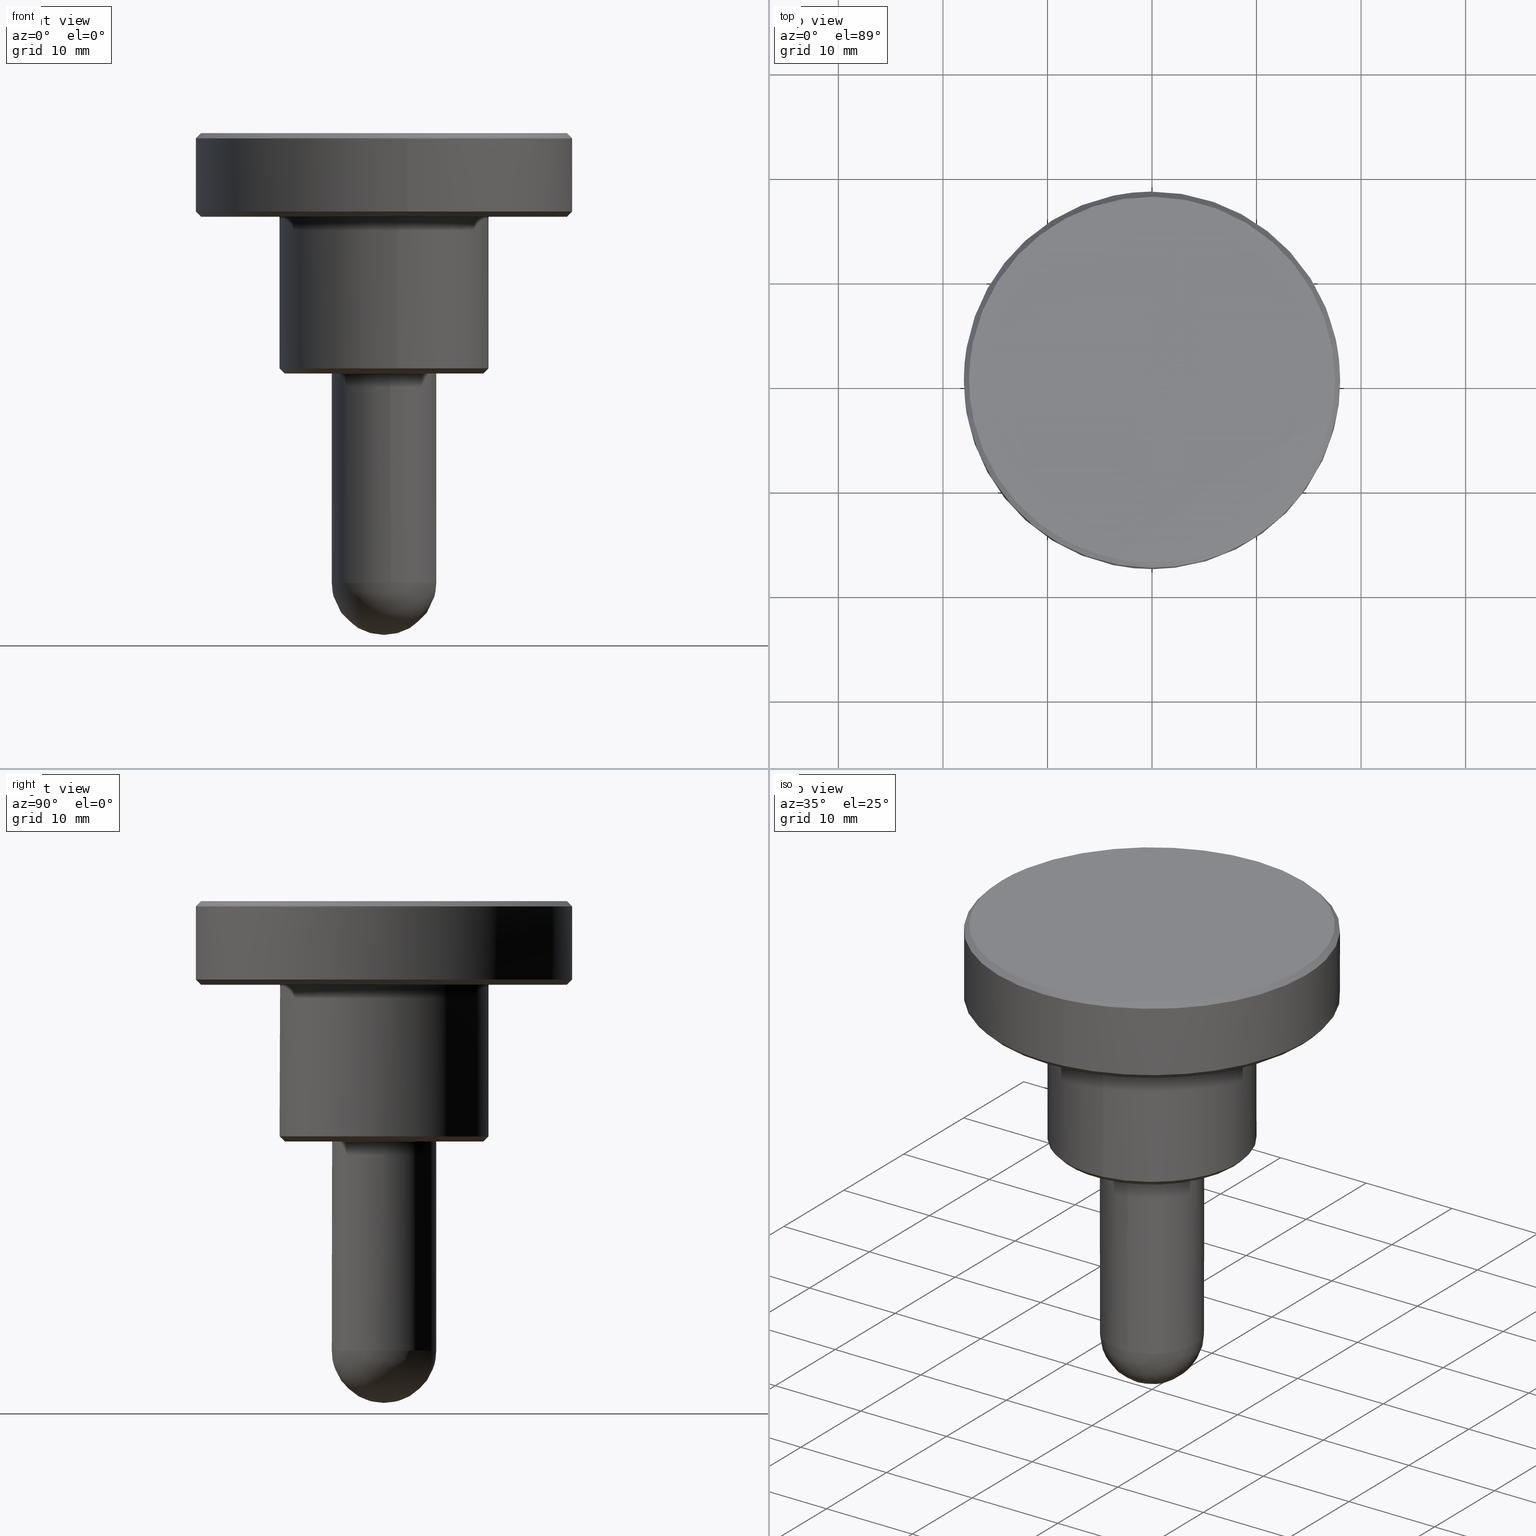
[diagram: canonical four-view strip — front | top / right | iso, engineering-drawing reading convention]
A machine part, canonical four-view strip (front | top / right | iso — engineering-drawing reading convention). The complete STEP part file that produces these views, byte-faithful:
ISO-10303-21;
HEADER;
/****************************************************************
 * Generated by software with PDE/Lib inside                    *
 * PDElib Version 4.4.1-0003, patched  Thursday August 19 11:58 *
 * International Technegroup Inc. (www.iti-oh.com)              *
 ****************************************************************/
FILE_DESCRIPTION((''),'2;1');
FILE_NAME('','2005-07-15T10:48:40',(''),(''),'','CADfix','');
FILE_SCHEMA(('AUTOMOTIVE_DESIGN'));
ENDSEC;
DATA;
#5=APPLICATION_CONTEXT('automotive design');
#6=APPLICATION_PROTOCOL_DEFINITION('Draft International Standard','automotive_design',1998,#5);
#7=PRODUCT_CONTEXT('None',#5,'mechanical');
#8=PRODUCT('knob','','None',(#7));
#9=PRODUCT_RELATED_PRODUCT_CATEGORY('part','description',(#8));
#10=PRODUCT_DEFINITION_FORMATION('None','None',#8);
#11=PRODUCT_DEFINITION_CONTEXT('part definition',#5,'design');
#12=PRODUCT_DEFINITION('None','None',#10,#11);
#18=(NAMED_UNIT(*)PLANE_ANGLE_UNIT()SI_UNIT($,.RADIAN.));
#19=DIMENSIONAL_EXPONENTS(0.0,0.0,0.0,0.0,0.0,0.0,0.0);
#20=PLANE_ANGLE_MEASURE_WITH_UNIT(PLANE_ANGLE_MEASURE(0.017453292500000),#18);
#24=(CONVERSION_BASED_UNIT('DEGREE',#20)NAMED_UNIT(#19)PLANE_ANGLE_UNIT());
#28=(NAMED_UNIT(*)SI_UNIT($,.STERADIAN.)SOLID_ANGLE_UNIT());
#32=(LENGTH_UNIT()NAMED_UNIT(*)SI_UNIT(.MILLI.,.METRE.));
#34=UNCERTAINTY_MEASURE_WITH_UNIT(LENGTH_MEASURE(0.001000000000000),#32,'DISTANCE_ACCURACY_VALUE','');
#36=(GEOMETRIC_REPRESENTATION_CONTEXT(3)GLOBAL_UNCERTAINTY_ASSIGNED_CONTEXT((#34))GLOBAL_UNIT_ASSIGNED_CONTEXT((#24,#28,#32))REPRESENTATION_CONTEXT('None','None'));
#37=AXIS2_PLACEMENT_3D('',#38,#39,#40);
#38=CARTESIAN_POINT('',(0.0,0.0,0.0));
#39=DIRECTION('',(0.0,0.0,1.0));
#40=DIRECTION('',(1.0,0.0,0.0));
#41=ADVANCED_BREP_SHAPE_REPRESENTATION('',(#37,#1168),#36);
#42=PRODUCT_DEFINITION_SHAPE('','',#12);
#43=SHAPE_DEFINITION_REPRESENTATION(#42,#41);
#44=CARTESIAN_POINT('',(-17.036639953710658,-3.945320688819989,23.012499999999999));
#45=CARTESIAN_POINT('',(-17.504948331500820,-1.923076656205386,23.012500000000003));
#46=CARTESIAN_POINT('',(-17.486834129584739,0.152605289527814,23.012499999999999));
#47=CARTESIAN_POINT('',(-17.334228840056934,17.639439419112552,23.012500000000006));
#48=CARTESIAN_POINT('',(0.152605289527814,17.486834129584739,23.012499999999999));
#49=CARTESIAN_POINT('',(17.639439419112552,17.334228840056934,23.012500000000006));
#50=CARTESIAN_POINT('',(17.486834129584739,-0.152605289527814,23.012499999999999));
#51=CARTESIAN_POINT('',(17.334228840056934,-17.639439419112552,23.012500000000006));
#52=CARTESIAN_POINT('',(-0.152605289527814,-17.486834129584739,23.012499999999999));
#53=CARTESIAN_POINT('',(-17.548408927302248,-4.063835415015588,22.487187499999994));
#54=CARTESIAN_POINT('',(-18.030784967405925,-1.980844559334066,22.487187499999990));
#55=CARTESIAN_POINT('',(-18.012126627294339,0.157189447706803,22.487187500000001));
#56=CARTESIAN_POINT('',(-17.854937179587541,18.169316075001138,22.487187500000005));
#57=CARTESIAN_POINT('',(0.157189447706803,18.012126627294339,22.487187500000001));
#58=CARTESIAN_POINT('',(18.169316075001138,17.854937179587541,22.487187500000005));
#59=CARTESIAN_POINT('',(18.012126627294339,-0.157189447706803,22.487187500000001));
#60=CARTESIAN_POINT('',(17.854937179587541,-18.169316075001138,22.487187500000005));
#61=CARTESIAN_POINT('',(-0.157189447706803,-18.012126627294339,22.487187500000001));
#69=(BOUNDED_SURFACE()B_SPLINE_SURFACE(2,1,((#44,#53),(#45,#54),(#46,#55),(#47,#56),(#48,#57),(#49,#58),(#50,#59),(#51,#60),(#52,#61)),.UNSPECIFIED.,.F.,.F.,.U.)B_SPLINE_SURFACE_WITH_KNOTS((3,2,2,2,3),(2,2),(0.0,4.775136789749517,34.619741725683980,64.464346661618450,94.308951597552920),(0.0,1.0),.UNSPECIFIED.)GEOMETRIC_REPRESENTATION_ITEM()RATIONAL_B_SPLINE_SURFACE(((0.921270302782944,0.921270302782944),(0.953137084989848,0.953137084989848),(1.0,1.0),(0.707106781186548,0.707106781186548),(1.0,1.0),(0.707106781186548,0.707106781186548),(1.0,1.0),(0.707106781186548,0.707106781186548),(1.0,1.0)))REPRESENTATION_ITEM('')SURFACE());
#70=CARTESIAN_POINT('',(-17.535926757211040,-4.060944811969350,22.499999999996358));
#71=VERTEX_POINT('',#70);
#72=CARTESIAN_POINT('',(-18.0,0.0,22.500000000000000));
#73=VERTEX_POINT('',#72);
#74=CARTESIAN_POINT('',(-17.535926757211048,-4.060944811969350,22.499999999996362));
#75=CARTESIAN_POINT('',(-18.0,-2.056988892267413,22.500000000000000));
#76=CARTESIAN_POINT('',(-18.0,0.0,22.500000000000000));
#84=(BOUNDED_CURVE()B_SPLINE_CURVE(2,(#74,#75,#76),.UNSPECIFIED.,.F.,.U.)B_SPLINE_CURVE_WITH_KNOTS((3,3),(0.961422971784034,1.0),.UNSPECIFIED.)CURVE()GEOMETRIC_REPRESENTATION_ITEM()RATIONAL_B_SPLINE_CURVE((0.923556557441853,0.954804200134273,1.0))REPRESENTATION_ITEM(''));
#85=EDGE_CURVE('',#71,#73,#84,.T.);
#86=ORIENTED_EDGE('',*,*,#85,.F.);
#87=CARTESIAN_POINT('',(-17.048817680619980,-3.948140789431212,22.999999999994571));
#88=VERTEX_POINT('',#87);
#89=CARTESIAN_POINT('',(-17.048817680619980,-3.948140789431212,22.999999999994571));
#90=CARTESIAN_POINT('',(-17.535926757211040,-4.060944811969350,22.499999999996358));
#91=QUASI_UNIFORM_CURVE('',1,(#89,#90),.UNSPECIFIED.,.F.,.U.);
#92=EDGE_CURVE('',#88,#71,#91,.T.);
#93=ORIENTED_EDGE('',*,*,#92,.F.);
#94=CARTESIAN_POINT('',(-17.500000000000000,0.0,23.0));
#95=VERTEX_POINT('',#94);
#96=CARTESIAN_POINT('',(-17.500000000000000,0.0,23.0));
#97=CARTESIAN_POINT('',(-17.500000000000004,-1.999850311943462,23.000000000000004));
#98=CARTESIAN_POINT('',(-17.048817680619983,-3.948140789431213,22.999999999994571));
#106=(BOUNDED_CURVE()B_SPLINE_CURVE(2,(#96,#97,#98),.UNSPECIFIED.,.F.,.U.)B_SPLINE_CURVE_WITH_KNOTS((3,3),(0.500000000000000,0.538577028216276),.UNSPECIFIED.)CURVE()GEOMETRIC_REPRESENTATION_ITEM()RATIONAL_B_SPLINE_CURVE((1.0,0.954804200133911,0.923556557441352))REPRESENTATION_ITEM(''));
#107=EDGE_CURVE('',#95,#88,#106,.T.);
#108=ORIENTED_EDGE('',*,*,#107,.F.);
#109=CARTESIAN_POINT('',(17.500000000000000,0.0,23.0));
#110=VERTEX_POINT('',#109);
#111=CARTESIAN_POINT('',(17.500000000000000,0.0,23.0));
#112=CARTESIAN_POINT('',(17.499999999999996,17.499999999999996,22.999999999999993));
#113=CARTESIAN_POINT('',(0.0,17.500000000000000,23.0));
#114=CARTESIAN_POINT('',(-17.499999999999996,17.499999999999996,22.999999999999993));
#115=CARTESIAN_POINT('',(-17.500000000000000,0.0,23.0));
#123=(BOUNDED_CURVE()B_SPLINE_CURVE(2,(#111,#112,#113,#114,#115),.UNSPECIFIED.,.F.,.U.)B_SPLINE_CURVE_WITH_KNOTS((3,2,3),(0.0,0.250000000000000,0.500000000000000),.UNSPECIFIED.)CURVE()GEOMETRIC_REPRESENTATION_ITEM()RATIONAL_B_SPLINE_CURVE((1.0,0.707106781186548,1.0,0.707106781186548,1.0))REPRESENTATION_ITEM(''));
#124=EDGE_CURVE('',#110,#95,#123,.T.);
#125=ORIENTED_EDGE('',*,*,#124,.F.);
#126=CARTESIAN_POINT('',(-0.152714371268625,-17.499333653629002,22.999999999993609));
#127=VERTEX_POINT('',#126);
#128=CARTESIAN_POINT('',(-0.152714371268625,-17.499333653629005,22.999999999993609));
#129=CARTESIAN_POINT('',(-0.076358639409306,-17.500000000000000,23.000000000000004));
#130=CARTESIAN_POINT('',(0.0,-17.500000000000000,23.0));
#131=CARTESIAN_POINT('',(17.499999999999996,-17.499999999999996,22.999999999999993));
#132=CARTESIAN_POINT('',(17.500000000000000,0.0,23.0));
#140=(BOUNDED_CURVE()B_SPLINE_CURVE(2,(#128,#129,#130,#131,#132),.UNSPECIFIED.,.F.,.U.)B_SPLINE_CURVE_WITH_KNOTS((3,2,3),(0.748460105664066,0.750000000000000,1.0),.UNSPECIFIED.)CURVE()GEOMETRIC_REPRESENTATION_ITEM()RATIONAL_B_SPLINE_CURVE((0.996414028098215,0.998195901565263,1.0,0.707106781186548,1.0))REPRESENTATION_ITEM(''));
#141=EDGE_CURVE('',#127,#110,#140,.T.);
#142=ORIENTED_EDGE('',*,*,#141,.F.);
#143=CARTESIAN_POINT('',(-0.157077639032646,-17.999314615162959,22.499999999991580));
#144=VERTEX_POINT('',#143);
#145=CARTESIAN_POINT('',(-0.152714371268625,-17.499333653629002,22.999999999993609));
#146=CARTESIAN_POINT('',(-0.157077639032646,-17.999314615162959,22.499999999991580));
#147=QUASI_UNIFORM_CURVE('',1,(#145,#146),.UNSPECIFIED.,.F.,.U.);
#148=EDGE_CURVE('',#127,#144,#147,.T.);
#149=ORIENTED_EDGE('',*,*,#148,.T.);
#150=CARTESIAN_POINT('',(2.234292461750493,-17.860793296917940,22.499999999999961));
#151=VERTEX_POINT('',#150);
#152=CARTESIAN_POINT('',(2.234292461750493,-17.860793296917937,22.499999999999968));
#153=CARTESIAN_POINT('',(1.121482840006485,-17.999999999999996,22.500000000000004));
#154=CARTESIAN_POINT('',(0.0,-18.0,22.500000000000000));
#155=CARTESIAN_POINT('',(-0.078540314834513,-18.000000000000004,22.500000000000007));
#156=CARTESIAN_POINT('',(-0.157077639032646,-17.999314615162962,22.499999999991587));
#164=(BOUNDED_CURVE()B_SPLINE_CURVE(2,(#152,#153,#154,#155,#156),.UNSPECIFIED.,.F.,.U.)B_SPLINE_CURVE_WITH_KNOTS((3,2,3),(0.728526180329740,0.750000000000000,0.751539894336198),.UNSPECIFIED.)CURVE()GEOMETRIC_REPRESENTATION_ITEM()RATIONAL_B_SPLINE_CURVE((0.954005642384730,0.974841855346232,1.0,0.998195901564953,0.996414028097603))REPRESENTATION_ITEM(''));
#165=EDGE_CURVE('',#151,#144,#164,.T.);
#166=ORIENTED_EDGE('',*,*,#165,.F.);
#167=CARTESIAN_POINT('',(18.0,0.0,22.500000000000000));
#168=VERTEX_POINT('',#167);
#169=CARTESIAN_POINT('',(18.0,0.0,22.500000000000000));
#170=CARTESIAN_POINT('',(17.999999999999996,-15.888585180446192,22.499999999999996));
#171=CARTESIAN_POINT('',(2.234292461750493,-17.860793296917937,22.499999999999968));
#179=(BOUNDED_CURVE()B_SPLINE_CURVE(2,(#169,#170,#171),.UNSPECIFIED.,.F.,.U.)B_SPLINE_CURVE_WITH_KNOTS((3,3),(0.500000000000000,0.728526180329740),.UNSPECIFIED.)CURVE()GEOMETRIC_REPRESENTATION_ITEM()RATIONAL_B_SPLINE_CURVE((1.0,0.732264925840316,0.954005642384730))REPRESENTATION_ITEM(''));
#180=EDGE_CURVE('',#168,#151,#179,.T.);
#181=ORIENTED_EDGE('',*,*,#180,.F.);
#182=CARTESIAN_POINT('',(-0.157062411385727,17.999314748031320,22.500000000000011));
#183=VERTEX_POINT('',#182);
#184=CARTESIAN_POINT('',(-0.157062411385727,17.999314748031320,22.500000000000014));
#185=CARTESIAN_POINT('',(-0.078532700545314,17.999999999999996,22.500000000000004));
#186=CARTESIAN_POINT('',(0.0,18.0,22.500000000000000));
#187=CARTESIAN_POINT('',(18.000000000000007,18.000000000000007,22.500000000000004));
#188=CARTESIAN_POINT('',(18.0,0.0,22.500000000000000));
#196=(BOUNDED_CURVE()B_SPLINE_CURVE(2,(#184,#185,#186,#187,#188),.UNSPECIFIED.,.F.,.U.)B_SPLINE_CURVE_WITH_KNOTS((3,2,3),(0.248460254683442,0.250000000000000,0.500000000000000),.UNSPECIFIED.)CURVE()GEOMETRIC_REPRESENTATION_ITEM()RATIONAL_B_SPLINE_CURVE((0.996414372971010,0.998196076152321,1.0,0.707106781186547,1.0))REPRESENTATION_ITEM(''));
#197=EDGE_CURVE('',#183,#168,#196,.T.);
#198=ORIENTED_EDGE('',*,*,#197,.F.);
#199=CARTESIAN_POINT('',(-18.0,0.0,22.500000000000000));
#200=CARTESIAN_POINT('',(-17.999999999999996,17.843616887141181,22.500000000000000));
#201=CARTESIAN_POINT('',(-0.157062411385727,17.999314748031320,22.500000000000014));
#209=(BOUNDED_CURVE()B_SPLINE_CURVE(2,(#199,#200,#201),.UNSPECIFIED.,.F.,.U.)B_SPLINE_CURVE_WITH_KNOTS((3,3),(0.0,0.248460254683442),.UNSPECIFIED.)CURVE()GEOMETRIC_REPRESENTATION_ITEM()RATIONAL_B_SPLINE_CURVE((1.0,0.708910705034226,0.996414372971010))REPRESENTATION_ITEM(''));
#210=EDGE_CURVE('',#73,#183,#209,.T.);
#211=ORIENTED_EDGE('',*,*,#210,.F.);
#212=EDGE_LOOP('',(#86,#93,#108,#125,#142,#149,#166,#181,#198,#211));
#213=FACE_OUTER_BOUND('',#212,.T.);
#214=ADVANCED_FACE('',(#213),#69,.T.);
#215=CARTESIAN_POINT('',(-0.152605289527814,-17.486834129584739,23.012499999999999));
#216=CARTESIAN_POINT('',(-13.928556243240688,-17.366613226919718,23.012500000000003));
#217=CARTESIAN_POINT('',(-17.036639953710658,-3.945320688819989,23.012499999999999));
#218=CARTESIAN_POINT('',(-0.157189447706803,-18.012126627294339,22.487187500000001));
#219=CARTESIAN_POINT('',(-14.346960514950569,-17.888294371209376,22.487187500000001));
#220=CARTESIAN_POINT('',(-17.548408927302248,-4.063835415015588,22.487187499999994));
#228=(BOUNDED_SURFACE()B_SPLINE_SURFACE(2,1,((#215,#218),(#216,#219),(#217,#220)),.UNSPECIFIED.,.F.,.F.,.U.)B_SPLINE_SURFACE_WITH_KNOTS((3,3),(2,2),(0.0,24.959837908595269),(0.0,1.0),.UNSPECIFIED.)GEOMETRIC_REPRESENTATION_ITEM()RATIONAL_B_SPLINE_SURFACE(((1.0,1.0),(0.753969696196700,0.753969696196700),(0.921270302782944,0.921270302782944)))REPRESENTATION_ITEM('')SURFACE());
#229=CARTESIAN_POINT('',(-0.157077639032646,-17.999314615162955,22.499999999991584));
#230=CARTESIAN_POINT('',(-14.336755532685002,-17.875570440763649,22.499999999999996));
#231=CARTESIAN_POINT('',(-17.535926757211040,-4.060944811969351,22.499999999996366));
#239=(BOUNDED_CURVE()B_SPLINE_CURVE(2,(#229,#230,#231),.UNSPECIFIED.,.F.,.U.)B_SPLINE_CURVE_WITH_KNOTS((3,3),(0.751539894336198,0.961422971784034),.UNSPECIFIED.)CURVE()GEOMETRIC_REPRESENTATION_ITEM()RATIONAL_B_SPLINE_CURVE((0.996414028097605,0.753549905437455,0.923556557441853))REPRESENTATION_ITEM(''));
#240=EDGE_CURVE('',#144,#71,#239,.T.);
#241=ORIENTED_EDGE('',*,*,#240,.F.);
#242=ORIENTED_EDGE('',*,*,#148,.F.);
#243=CARTESIAN_POINT('',(-17.048817680619990,-3.948140789431212,22.999999999994568));
#244=CARTESIAN_POINT('',(-13.938512323412096,-17.379026817430098,23.000000000000007));
#245=CARTESIAN_POINT('',(-0.152714371268625,-17.499333653629005,22.999999999993609));
#253=(BOUNDED_CURVE()B_SPLINE_CURVE(2,(#243,#244,#245),.UNSPECIFIED.,.F.,.U.)B_SPLINE_CURVE_WITH_KNOTS((3,3),(0.538577028216275,0.748460105664067),.UNSPECIFIED.)CURVE()GEOMETRIC_REPRESENTATION_ITEM()RATIONAL_B_SPLINE_CURVE((0.923556557441352,0.753549905437598,0.996414028098217))REPRESENTATION_ITEM(''));
#254=EDGE_CURVE('',#88,#127,#253,.T.);
#255=ORIENTED_EDGE('',*,*,#254,.F.);
#256=ORIENTED_EDGE('',*,*,#92,.T.);
#257=EDGE_LOOP('',(#241,#242,#255,#256));
#258=FACE_OUTER_BOUND('',#257,.T.);
#259=ADVANCED_FACE('',(#258),#228,.T.);
#260=CARTESIAN_POINT('',(14.319921146030703,-10.037555211378052,14.987499999999999));
#261=CARTESIAN_POINT('',(17.535725391208214,-5.449778383031156,14.987499999999997));
#262=CARTESIAN_POINT('',(17.486834129584690,0.152605289527813,14.987500000000001));
#263=CARTESIAN_POINT('',(17.334228840056877,17.639439419112509,14.987499999999997));
#264=CARTESIAN_POINT('',(-0.152605289527813,17.486834129584690,14.987500000000001));
#265=CARTESIAN_POINT('',(-17.639439419112509,17.334228840056877,14.987499999999997));
#266=CARTESIAN_POINT('',(-17.486834129584690,-0.152605289527813,14.987500000000001));
#267=CARTESIAN_POINT('',(-17.334228840056877,-17.639439419112509,14.987499999999997));
#268=CARTESIAN_POINT('',(0.152605289527813,-17.486834129584690,14.987500000000001));
#269=CARTESIAN_POINT('',(14.750081750864162,-10.339076482113015,15.512812500000001));
#270=CARTESIAN_POINT('',(18.062486548867700,-5.613485985995352,15.512812500000004));
#271=CARTESIAN_POINT('',(18.012126627294400,0.157189447706803,15.512812500000001));
#272=CARTESIAN_POINT('',(17.854937179587598,18.169316075001191,15.512812499999999));
#273=CARTESIAN_POINT('',(-0.157189447706803,18.012126627294400,15.512812500000001));
#274=CARTESIAN_POINT('',(-18.169316075001191,17.854937179587598,15.512812499999999));
#275=CARTESIAN_POINT('',(-18.012126627294400,-0.157189447706803,15.512812500000001));
#276=CARTESIAN_POINT('',(-17.854937179587598,-18.169316075001191,15.512812499999999));
#277=CARTESIAN_POINT('',(0.157189447706803,-18.012126627294400,15.512812500000001));
#285=(BOUNDED_SURFACE()B_SPLINE_SURFACE(2,1,((#260,#269),(#261,#270),(#262,#271),(#263,#272),(#264,#273),(#265,#274),(#266,#275),(#267,#276),(#268,#277)),.UNSPECIFIED.,.F.,.F.,.U.)B_SPLINE_SURFACE_WITH_KNOTS((3,2,2,2,3),(2,2),(0.0,11.937841974373820,41.782446910308373,71.627051846242921,101.471656782177500),(0.0,1.0),.UNSPECIFIED.)GEOMETRIC_REPRESENTATION_ITEM()RATIONAL_B_SPLINE_SURFACE(((0.859411254969543,0.859411254969543),(0.882842712474619,0.882842712474619),(1.0,1.0),(0.707106781186548,0.707106781186548),(1.0,1.0),(0.707106781186548,0.707106781186548),(1.0,1.0),(0.707106781186548,0.707106781186548),(1.0,1.0)))REPRESENTATION_ITEM('')SURFACE());
#286=CARTESIAN_POINT('',(17.500000000000000,0.0,15.0));
#287=VERTEX_POINT('',#286);
#288=CARTESIAN_POINT('',(14.330156972433670,-10.044730018543410,15.000000000000471));
#289=VERTEX_POINT('',#288);
#290=CARTESIAN_POINT('',(17.500000000000000,0.0,15.0));
#291=CARTESIAN_POINT('',(17.500000000000004,-5.522523042438500,14.999999999999996));
#292=CARTESIAN_POINT('',(14.330156972433665,-10.044730018543413,15.000000000000471));
#300=(BOUNDED_CURVE()B_SPLINE_CURVE(2,(#290,#291,#292),.UNSPECIFIED.,.F.,.U.)B_SPLINE_CURVE_WITH_KNOTS((3,3),(0.0,0.098673726203063),.UNSPECIFIED.)CURVE()GEOMETRIC_REPRESENTATION_ITEM()RATIONAL_B_SPLINE_CURVE((1.0,0.884396538880270,0.860049271925778))REPRESENTATION_ITEM(''));
#301=EDGE_CURVE('',#287,#289,#300,.T.);
#302=ORIENTED_EDGE('',*,*,#301,.F.);
#303=CARTESIAN_POINT('',(-17.500000000000000,0.0,15.0));
#304=VERTEX_POINT('',#303);
#305=CARTESIAN_POINT('',(-17.500000000000000,0.0,15.0));
#306=CARTESIAN_POINT('',(-17.499999999999996,17.499999999999996,14.999999999999995));
#307=CARTESIAN_POINT('',(0.0,17.500000000000000,15.0));
#308=CARTESIAN_POINT('',(17.499999999999996,17.499999999999996,14.999999999999995));
#309=CARTESIAN_POINT('',(17.500000000000000,0.0,15.0));
#317=(BOUNDED_CURVE()B_SPLINE_CURVE(2,(#305,#306,#307,#308,#309),.UNSPECIFIED.,.F.,.U.)B_SPLINE_CURVE_WITH_KNOTS((3,2,3),(0.500000000000000,0.750000000000000,1.0),.UNSPECIFIED.)CURVE()GEOMETRIC_REPRESENTATION_ITEM()RATIONAL_B_SPLINE_CURVE((1.0,0.707106781186548,1.0,0.707106781186548,1.0))REPRESENTATION_ITEM(''));
#318=EDGE_CURVE('',#304,#287,#317,.T.);
#319=ORIENTED_EDGE('',*,*,#318,.F.);
#320=CARTESIAN_POINT('',(0.152714371268623,-17.499333653628991,15.000000000006411));
#321=VERTEX_POINT('',#320);
#322=CARTESIAN_POINT('',(0.152714371268623,-17.499333653628984,15.000000000006407));
#323=CARTESIAN_POINT('',(0.076358639409304,-17.499999999999996,15.000000000000004));
#324=CARTESIAN_POINT('',(0.0,-17.500000000000000,15.0));
#325=CARTESIAN_POINT('',(-17.499999999999996,-17.499999999999996,14.999999999999995));
#326=CARTESIAN_POINT('',(-17.500000000000000,0.0,15.0));
#334=(BOUNDED_CURVE()B_SPLINE_CURVE(2,(#322,#323,#324,#325,#326),.UNSPECIFIED.,.F.,.U.)B_SPLINE_CURVE_WITH_KNOTS((3,2,3),(0.248460105664066,0.250000000000000,0.500000000000000),.UNSPECIFIED.)CURVE()GEOMETRIC_REPRESENTATION_ITEM()RATIONAL_B_SPLINE_CURVE((0.996414028098215,0.998195901565263,1.0,0.707106781186548,1.0))REPRESENTATION_ITEM(''));
#335=EDGE_CURVE('',#321,#304,#334,.T.);
#336=ORIENTED_EDGE('',*,*,#335,.F.);
#337=CARTESIAN_POINT('',(0.157077638971127,-17.999314615155150,15.500000000000041));
#338=VERTEX_POINT('',#337);
#339=CARTESIAN_POINT('',(0.152714371268623,-17.499333653628991,15.000000000006411));
#340=CARTESIAN_POINT('',(0.157077638971127,-17.999314615155150,15.500000000000041));
#341=QUASI_UNIFORM_CURVE('',1,(#339,#340),.UNSPECIFIED.,.F.,.U.);
#342=EDGE_CURVE('',#321,#338,#341,.T.);
#343=ORIENTED_EDGE('',*,*,#342,.T.);
#344=CARTESIAN_POINT('',(-18.0,0.0,15.500000000000000));
#345=VERTEX_POINT('',#344);
#346=CARTESIAN_POINT('',(-18.0,0.0,15.500000000000000));
#347=CARTESIAN_POINT('',(-18.000000000000007,-18.000000000000007,15.500000000000005));
#348=CARTESIAN_POINT('',(0.0,-18.0,15.500000000000000));
#349=CARTESIAN_POINT('',(0.078540314773026,-18.000000000000007,15.500000000000004));
#350=CARTESIAN_POINT('',(0.157077638971127,-17.999314615155146,15.500000000000041));
#358=(BOUNDED_CURVE()B_SPLINE_CURVE(2,(#346,#347,#348,#349,#350),.UNSPECIFIED.,.F.,.U.)B_SPLINE_CURVE_WITH_KNOTS((3,2,3),(0.0,0.250000000000000,0.251539894334995),.UNSPECIFIED.)CURVE()GEOMETRIC_REPRESENTATION_ITEM()RATIONAL_B_SPLINE_CURVE((1.0,0.707106781186547,1.0,0.998195901566363,0.996414028100388))REPRESENTATION_ITEM(''));
#359=EDGE_CURVE('',#345,#338,#358,.T.);
#360=ORIENTED_EDGE('',*,*,#359,.F.);
#361=CARTESIAN_POINT('',(-0.157061939083980,17.999314752152220,15.500000000000000));
#362=VERTEX_POINT('',#361);
#363=CARTESIAN_POINT('',(-0.157061939083980,17.999314752152223,15.500000000000000));
#364=CARTESIAN_POINT('',(-18.0,17.843617355375248,15.500000000000004));
#365=CARTESIAN_POINT('',(-18.0,0.0,15.500000000000000));
#373=(BOUNDED_CURVE()B_SPLINE_CURVE(2,(#363,#364,#365),.UNSPECIFIED.,.F.,.U.)B_SPLINE_CURVE_WITH_KNOTS((3,3),(0.751539740694573,1.0),.UNSPECIFIED.)CURVE()GEOMETRIC_REPRESENTATION_ITEM()RATIONAL_B_SPLINE_CURVE((0.996414383667592,0.708910699619233,1.0))REPRESENTATION_ITEM(''));
#374=EDGE_CURVE('',#362,#345,#373,.T.);
#375=ORIENTED_EDGE('',*,*,#374,.F.);
#376=CARTESIAN_POINT('',(18.0,0.0,15.500000000000000));
#377=VERTEX_POINT('',#376);
#378=CARTESIAN_POINT('',(18.0,0.0,15.500000000000000));
#379=CARTESIAN_POINT('',(18.000000000000007,18.000000000000007,15.500000000000005));
#380=CARTESIAN_POINT('',(0.0,18.0,15.500000000000000));
#381=CARTESIAN_POINT('',(-0.078532464380953,18.000000000000004,15.500000000000002));
#382=CARTESIAN_POINT('',(-0.157061939083980,17.999314752152223,15.500000000000000));
#390=(BOUNDED_CURVE()B_SPLINE_CURVE(2,(#378,#379,#380,#381,#382),.UNSPECIFIED.,.F.,.U.)B_SPLINE_CURVE_WITH_KNOTS((3,2,3),(0.500000000000000,0.750000000000000,0.751539740694573),.UNSPECIFIED.)CURVE()GEOMETRIC_REPRESENTATION_ITEM()RATIONAL_B_SPLINE_CURVE((1.0,0.707106781186547,1.0,0.998196081567314,0.996414383667592))REPRESENTATION_ITEM(''));
#391=EDGE_CURVE('',#377,#362,#390,.T.);
#392=ORIENTED_EDGE('',*,*,#391,.F.);
#393=CARTESIAN_POINT('',(14.739590028794620,-10.331722304778610,15.500000000000020));
#394=VERTEX_POINT('',#393);
#395=CARTESIAN_POINT('',(14.739590028794618,-10.331722304778614,15.500000000000014));
#396=CARTESIAN_POINT('',(17.999999999999996,-5.680309415067988,15.500000000000005));
#397=CARTESIAN_POINT('',(18.0,0.0,15.500000000000000));
#405=(BOUNDED_CURVE()B_SPLINE_CURVE(2,(#395,#396,#397),.UNSPECIFIED.,.F.,.U.)B_SPLINE_CURVE_WITH_KNOTS((3,3),(0.401326273797115,0.500000000000000),.UNSPECIFIED.)CURVE()GEOMETRIC_REPRESENTATION_ITEM()RATIONAL_B_SPLINE_CURVE((0.860049271925866,0.884396538880479,1.0))REPRESENTATION_ITEM(''));
#406=EDGE_CURVE('',#394,#377,#405,.T.);
#407=ORIENTED_EDGE('',*,*,#406,.F.);
#408=CARTESIAN_POINT('',(14.330156972433670,-10.044730018543410,15.000000000000471));
#409=CARTESIAN_POINT('',(14.739590028794620,-10.331722304778610,15.500000000000020));
#410=QUASI_UNIFORM_CURVE('',1,(#408,#409),.UNSPECIFIED.,.F.,.U.);
#411=EDGE_CURVE('',#289,#394,#410,.T.);
#412=ORIENTED_EDGE('',*,*,#411,.F.);
#413=EDGE_LOOP('',(#302,#319,#336,#343,#360,#375,#392,#407,#412));
#414=FACE_OUTER_BOUND('',#413,.T.);
#415=ADVANCED_FACE('',(#414),#285,.T.);
#416=CARTESIAN_POINT('',(0.152605289527813,-17.486834129584690,14.987500000000001));
#417=CARTESIAN_POINT('',(9.153404521625713,-17.408285344675011,14.987500000000002));
#418=CARTESIAN_POINT('',(14.319921146030703,-10.037555211378052,14.987499999999999));
#419=CARTESIAN_POINT('',(0.157189447706803,-18.012126627294400,15.512812500000001));
#420=CARTESIAN_POINT('',(9.428366512348630,-17.931218290786557,15.512812500000008));
#421=CARTESIAN_POINT('',(14.750081750864162,-10.339076482113015,15.512812500000001));
#429=(BOUNDED_SURFACE()B_SPLINE_SURFACE(2,1,((#416,#419),(#417,#420),(#418,#421)),.UNSPECIFIED.,.F.,.F.,.U.)B_SPLINE_SURFACE_WITH_KNOTS((3,3),(2,2),(0.0,17.784708021925880),(0.0,1.0),.UNSPECIFIED.)GEOMETRIC_REPRESENTATION_ITEM()RATIONAL_B_SPLINE_SURFACE(((1.0,1.0),(0.824264068711928,0.824264068711928),(0.859411254969543,0.859411254969543)))REPRESENTATION_ITEM('')SURFACE());
#430=CARTESIAN_POINT('',(14.330156972433665,-10.044730018543413,15.000000000000471));
#431=CARTESIAN_POINT('',(9.159947341175357,-17.420728722285244,14.999999999999998));
#432=CARTESIAN_POINT('',(0.152714371268623,-17.499333653628991,15.000000000006404));
#440=(BOUNDED_CURVE()B_SPLINE_CURVE(2,(#430,#431,#432),.UNSPECIFIED.,.F.,.U.)B_SPLINE_CURVE_WITH_KNOTS((3,3),(0.098673726203063,0.248460105664066),.UNSPECIFIED.)CURVE()GEOMETRIC_REPRESENTATION_ITEM()RATIONAL_B_SPLINE_CURVE((0.860049271925778,0.823090203821073,0.996414028098215))REPRESENTATION_ITEM(''));
#441=EDGE_CURVE('',#289,#321,#440,.T.);
#442=ORIENTED_EDGE('',*,*,#441,.F.);
#443=ORIENTED_EDGE('',*,*,#411,.T.);
#444=CARTESIAN_POINT('',(2.234297702629476,-17.860792641313090,15.500000000000000));
#445=VERTEX_POINT('',#444);
#446=CARTESIAN_POINT('',(2.234297702629476,-17.860792641313093,15.500000000000000));
#447=CARTESIAN_POINT('',(10.156770514427961,-16.869730085579619,15.500000000000000));
#448=CARTESIAN_POINT('',(14.739590028794613,-10.331722304778614,15.500000000000021));
#456=(BOUNDED_CURVE()B_SPLINE_CURVE(2,(#446,#447,#448),.UNSPECIFIED.,.F.,.U.)B_SPLINE_CURVE_WITH_KNOTS((3,3),(0.271473869155912,0.401326273797116),.UNSPECIFIED.)CURVE()GEOMETRIC_REPRESENTATION_ITEM()RATIONAL_B_SPLINE_CURVE((0.954005546352132,0.828008816151475,0.860049271925866))REPRESENTATION_ITEM(''));
#457=EDGE_CURVE('',#445,#394,#456,.T.);
#458=ORIENTED_EDGE('',*,*,#457,.F.);
#459=CARTESIAN_POINT('',(0.157077638971127,-17.999314615155150,15.500000000000046));
#460=CARTESIAN_POINT('',(1.199699658568229,-17.990215790634277,15.500000000000005));
#461=CARTESIAN_POINT('',(2.234297702629476,-17.860792641313093,15.500000000000000));
#469=(BOUNDED_CURVE()B_SPLINE_CURVE(2,(#459,#460,#461),.UNSPECIFIED.,.F.,.U.)B_SPLINE_CURVE_WITH_KNOTS((3,3),(0.251539894334995,0.271473869155912),.UNSPECIFIED.)CURVE()GEOMETRIC_REPRESENTATION_ITEM()RATIONAL_B_SPLINE_CURVE((0.996414028100388,0.973347626726213,0.954005546352132))REPRESENTATION_ITEM(''));
#470=EDGE_CURVE('',#338,#445,#469,.T.);
#471=ORIENTED_EDGE('',*,*,#470,.F.);
#472=ORIENTED_EDGE('',*,*,#342,.F.);
#473=EDGE_LOOP('',(#442,#443,#458,#471,#472));
#474=FACE_OUTER_BOUND('',#473,.T.);
#475=ADVANCED_FACE('',(#474),#429,.T.);
#476=CARTESIAN_POINT('',(-3.834993910984958,-8.677872893325199,-0.012499999999999));
#477=CARTESIAN_POINT('',(-1.963370728928781,-9.504995345460285,-0.012499999999999));
#478=CARTESIAN_POINT('',(0.082793005540822,-9.487138745071324,-0.012499999999999));
#479=CARTESIAN_POINT('',(9.569931750612147,-9.404345739530502,-0.012499999999999));
#480=CARTESIAN_POINT('',(9.487138745071324,0.082793005540822,-0.012499999999999));
#481=CARTESIAN_POINT('',(9.404345739530502,9.569931750612147,-0.012499999999999));
#482=CARTESIAN_POINT('',(-0.082793005540822,9.487138745071324,-0.012499999999999));
#483=CARTESIAN_POINT('',(-4.047333330101089,-9.158357225791594,0.512812499999944));
#484=CARTESIAN_POINT('',(-2.072080419157019,-10.031276543606490,0.512812499999944));
#485=CARTESIAN_POINT('',(0.087377163719812,-10.012431242780970,0.512812499999944));
#486=CARTESIAN_POINT('',(10.099808406500783,-9.925054079061161,0.512812499999944));
#487=CARTESIAN_POINT('',(10.012431242780970,0.087377163719812,0.512812499999944));
#488=CARTESIAN_POINT('',(9.925054079061161,10.099808406500783,0.512812499999944));
#489=CARTESIAN_POINT('',(-0.087377163719812,10.012431242780970,0.512812499999944));
#497=(BOUNDED_SURFACE()B_SPLINE_SURFACE(2,1,((#476,#483),(#477,#484),(#478,#485),(#479,#486),(#480,#487),(#481,#488),(#482,#489)),.UNSPECIFIED.,.F.,.F.,.U.)B_SPLINE_SURFACE_WITH_KNOTS((3,2,2,3),(2,2),(0.0,4.645135863198720,21.234906803194139,37.824677743189568),(0.0,1.0),.UNSPECIFIED.)GEOMETRIC_REPRESENTATION_ITEM()RATIONAL_B_SPLINE_SURFACE(((0.881905454174416,0.881905454174416),(0.917989898732233,0.917989898732233),(1.0,1.0),(0.707106781186548,0.707106781186548),(1.0,1.0),(0.707106781186548,0.707106781186548),(1.0,1.0)))REPRESENTATION_ITEM('')SURFACE());
#498=CARTESIAN_POINT('',(-4.042154319914989,-9.146638095718963,0.500000000003185));
#499=VERTEX_POINT('',#498);
#500=CARTESIAN_POINT('',(1.241265789382446,-9.922663918520220,0.499999999999937));
#501=VERTEX_POINT('',#500);
#502=CARTESIAN_POINT('',(-4.042154319914989,-9.146638095718963,0.500000000003185));
#503=CARTESIAN_POINT('',(-2.111156172558719,-10.0,0.499999999999945));
#504=CARTESIAN_POINT('',(0.0,-10.0,0.499999999999945));
#505=CARTESIAN_POINT('',(0.623042076330564,-10.000000000000002,0.499999999999945));
#506=CARTESIAN_POINT('',(1.241265789382446,-9.922663918520220,0.499999999999937));
#514=(BOUNDED_CURVE()B_SPLINE_CURVE(2,(#502,#503,#504,#505,#506),.UNSPECIFIED.,.F.,.U.)B_SPLINE_CURVE_WITH_KNOTS((3,2,3),(0.181361578458741,0.250000000000000,0.271473687093023),.UNSPECIFIED.)CURVE()GEOMETRIC_REPRESENTATION_ITEM()RATIONAL_B_SPLINE_CURVE((0.883326595750625,0.919585087122024,1.0,0.974842010670127,0.954005899666328))REPRESENTATION_ITEM(''));
#515=EDGE_CURVE('',#499,#501,#514,.T.);
#516=ORIENTED_EDGE('',*,*,#515,.F.);
#517=CARTESIAN_POINT('',(-3.840046603930027,-8.689306190929294,4.038038E-012));
#518=VERTEX_POINT('',#517);
#519=CARTESIAN_POINT('',(-3.840046603930027,-8.689306190929294,4.038038E-012));
#520=CARTESIAN_POINT('',(-4.042154319914989,-9.146638095718963,0.500000000003185));
#521=QUASI_UNIFORM_CURVE('',1,(#519,#520),.UNSPECIFIED.,.F.,.U.);
#522=EDGE_CURVE('',#518,#499,#521,.T.);
#523=ORIENTED_EDGE('',*,*,#522,.F.);
#524=CARTESIAN_POINT('',(9.500000000000000,0.0,0.0));
#525=VERTEX_POINT('',#524);
#526=CARTESIAN_POINT('',(9.500000000000000,0.0,0.0));
#527=CARTESIAN_POINT('',(9.500000000000000,-9.500000000000000,0.0));
#528=CARTESIAN_POINT('',(0.0,-9.500000000000000,0.0));
#529=CARTESIAN_POINT('',(-2.005598363942649,-9.500000000000000,0.0));
#530=CARTESIAN_POINT('',(-3.840046603930027,-8.689306190929294,4.038038E-012));
#538=(BOUNDED_CURVE()B_SPLINE_CURVE(2,(#526,#527,#528,#529,#530),.UNSPECIFIED.,.F.,.U.)B_SPLINE_CURVE_WITH_KNOTS((3,2,3),(0.500000000000000,0.750000000000000,0.818638421541633),.UNSPECIFIED.)CURVE()GEOMETRIC_REPRESENTATION_ITEM()RATIONAL_B_SPLINE_CURVE((1.0,0.707106781186548,1.0,0.919585087121586,0.883326595750231))REPRESENTATION_ITEM(''));
#539=EDGE_CURVE('',#525,#518,#538,.T.);
#540=ORIENTED_EDGE('',*,*,#539,.F.);
#541=CARTESIAN_POINT('',(-0.082902087248622,9.499638269111411,1.908171E-012));
#542=VERTEX_POINT('',#541);
#543=CARTESIAN_POINT('',(-0.082902087248622,9.499638269111411,1.908171E-012));
#544=CARTESIAN_POINT('',(-0.041451832810719,9.500000000000000,0.0));
#545=CARTESIAN_POINT('',(0.0,9.500000000000000,0.0));
#546=CARTESIAN_POINT('',(9.500000000000000,9.500000000000000,0.0));
#547=CARTESIAN_POINT('',(9.500000000000000,0.0,0.0));
#555=(BOUNDED_CURVE()B_SPLINE_CURVE(2,(#543,#544,#545,#546,#547),.UNSPECIFIED.,.F.,.U.)B_SPLINE_CURVE_WITH_KNOTS((3,2,3),(0.248460105664492,0.250000000000000,0.500000000000000),.UNSPECIFIED.)CURVE()GEOMETRIC_REPRESENTATION_ITEM()RATIONAL_B_SPLINE_CURVE((0.996414028099200,0.998195901565762,1.0,0.707106781186548,1.0))REPRESENTATION_ITEM(''));
#556=EDGE_CURVE('',#542,#525,#555,.T.);
#557=ORIENTED_EDGE('',*,*,#556,.F.);
#558=CARTESIAN_POINT('',(-0.087262114269280,9.999619258919854,0.499999999998912));
#559=VERTEX_POINT('',#558);
#560=CARTESIAN_POINT('',(-0.082902087248622,9.499638269111411,1.908171E-012));
#561=CARTESIAN_POINT('',(-0.087262114269280,9.999619258919854,0.499999999998912));
#562=QUASI_UNIFORM_CURVE('',1,(#560,#561),.UNSPECIFIED.,.F.,.U.);
#563=EDGE_CURVE('',#542,#559,#562,.T.);
#564=ORIENTED_EDGE('',*,*,#563,.T.);
#565=CARTESIAN_POINT('',(10.0,0.0,0.499999999999945));
#566=VERTEX_POINT('',#565);
#567=CARTESIAN_POINT('',(10.0,0.0,0.499999999999945));
#568=CARTESIAN_POINT('',(10.000000000000002,10.000000000000002,0.499999999999945));
#569=CARTESIAN_POINT('',(0.0,10.0,0.499999999999945));
#570=CARTESIAN_POINT('',(-0.043631887757249,10.0,0.499999999999945));
#571=CARTESIAN_POINT('',(-0.087262114269280,9.999619258919854,0.499999999998912));
#579=(BOUNDED_CURVE()B_SPLINE_CURVE(2,(#567,#568,#569,#570,#571),.UNSPECIFIED.,.F.,.U.)B_SPLINE_CURVE_WITH_KNOTS((3,2,3),(0.500000000000000,0.750000000000000,0.751539837249965),.UNSPECIFIED.)CURVE()GEOMETRIC_REPRESENTATION_ITEM()RATIONAL_B_SPLINE_CURVE((1.0,0.707106781186548,1.0,0.998195968445636,0.996414160211171))REPRESENTATION_ITEM(''));
#580=EDGE_CURVE('',#566,#559,#579,.T.);
#581=ORIENTED_EDGE('',*,*,#580,.F.);
#582=CARTESIAN_POINT('',(1.241265789382446,-9.922663918520220,0.499999999999937));
#583=CARTESIAN_POINT('',(10.0,-8.826998760140885,0.499999999999945));
#584=CARTESIAN_POINT('',(10.0,0.0,0.499999999999945));
#592=(BOUNDED_CURVE()B_SPLINE_CURVE(2,(#582,#583,#584),.UNSPECIFIED.,.F.,.U.)B_SPLINE_CURVE_WITH_KNOTS((3,3),(0.271473687093023,0.500000000000000),.UNSPECIFIED.)CURVE()GEOMETRIC_REPRESENTATION_ITEM()RATIONAL_B_SPLINE_CURVE((0.954005899666328,0.732264770516421,1.0))REPRESENTATION_ITEM(''));
#593=EDGE_CURVE('',#501,#566,#592,.T.);
#594=ORIENTED_EDGE('',*,*,#593,.F.);
#595=EDGE_LOOP('',(#516,#523,#540,#557,#564,#581,#594));
#596=FACE_OUTER_BOUND('',#595,.T.);
#597=ADVANCED_FACE('',(#596),#497,.T.);
#598=CARTESIAN_POINT('',(-0.082793005540822,9.487138745071324,-0.012499999999999));
#599=CARTESIAN_POINT('',(-9.569931750612147,9.404345739530502,-0.012499999999999));
#600=CARTESIAN_POINT('',(-9.487138745071324,-0.082793005540822,-0.012499999999999));
#601=CARTESIAN_POINT('',(-9.433722935820269,-6.203638483183840,-0.012499999999999));
#602=CARTESIAN_POINT('',(-3.834993910984958,-8.677872893325199,-0.012499999999999));
#603=CARTESIAN_POINT('',(-0.087377163719812,10.012431242780970,0.512812499999944));
#604=CARTESIAN_POINT('',(-10.099808406500783,9.925054079061161,0.512812499999944));
#605=CARTESIAN_POINT('',(-10.012431242780970,-0.087377163719812,0.512812499999944));
#606=CARTESIAN_POINT('',(-9.956057858584234,-6.547127162045237,0.512812499999943));
#607=CARTESIAN_POINT('',(-4.047333330101089,-9.158357225791594,0.512812499999944));
#615=(BOUNDED_SURFACE()B_SPLINE_SURFACE(2,1,((#598,#603),(#599,#604),(#600,#605),(#601,#606),(#602,#607)),.UNSPECIFIED.,.F.,.F.,.U.)B_SPLINE_SURFACE_WITH_KNOTS((3,2,3),(2,2),(0.0,16.589770939995429,28.534406016792129),(0.0,1.0),.UNSPECIFIED.)GEOMETRIC_REPRESENTATION_ITEM()RATIONAL_B_SPLINE_SURFACE(((1.0,1.0),(0.707106781186548,0.707106781186548),(1.0,1.0),(0.789116882454314,0.789116882454314),(0.881905454174416,0.881905454174416)))REPRESENTATION_ITEM('')SURFACE());
#616=CARTESIAN_POINT('',(-10.0,0.0,0.499999999999945));
#617=VERTEX_POINT('',#616);
#618=CARTESIAN_POINT('',(-10.0,0.0,0.499999999999945));
#619=CARTESIAN_POINT('',(-10.0,-6.513700025861865,0.499999999999945));
#620=CARTESIAN_POINT('',(-4.042154319914989,-9.146638095718963,0.500000000003185));
#628=(BOUNDED_CURVE()B_SPLINE_CURVE(2,(#618,#619,#620),.UNSPECIFIED.,.F.,.U.)B_SPLINE_CURVE_WITH_KNOTS((3,3),(0.0,0.181361578458741),.UNSPECIFIED.)CURVE()GEOMETRIC_REPRESENTATION_ITEM()RATIONAL_B_SPLINE_CURVE((1.0,0.787521694064524,0.883326595750625))REPRESENTATION_ITEM(''));
#629=EDGE_CURVE('',#617,#499,#628,.T.);
#630=ORIENTED_EDGE('',*,*,#629,.F.);
#631=CARTESIAN_POINT('',(-0.087262114269280,9.999619258919854,0.499999999998912));
#632=CARTESIAN_POINT('',(-10.0,9.913115318751508,0.499999999999945));
#633=CARTESIAN_POINT('',(-10.0,0.0,0.499999999999945));
#641=(BOUNDED_CURVE()B_SPLINE_CURVE(2,(#631,#632,#633),.UNSPECIFIED.,.F.,.U.)B_SPLINE_CURVE_WITH_KNOTS((3,3),(0.751539837249965,1.0),.UNSPECIFIED.)CURVE()GEOMETRIC_REPRESENTATION_ITEM()RATIONAL_B_SPLINE_CURVE((0.996414160211171,0.708910812740912,1.0))REPRESENTATION_ITEM(''));
#642=EDGE_CURVE('',#559,#617,#641,.T.);
#643=ORIENTED_EDGE('',*,*,#642,.F.);
#644=ORIENTED_EDGE('',*,*,#563,.F.);
#645=CARTESIAN_POINT('',(-9.500000000000000,0.0,0.0));
#646=VERTEX_POINT('',#645);
#647=CARTESIAN_POINT('',(-9.500000000000000,0.0,0.0));
#648=CARTESIAN_POINT('',(-9.500000000000000,9.417456500624432,0.0));
#649=CARTESIAN_POINT('',(-0.082902087248622,9.499638269111411,1.908171E-012));
#657=(BOUNDED_CURVE()B_SPLINE_CURVE(2,(#647,#648,#649),.UNSPECIFIED.,.F.,.U.)B_SPLINE_CURVE_WITH_KNOTS((3,3),(0.0,0.248460105664492),.UNSPECIFIED.)CURVE()GEOMETRIC_REPRESENTATION_ITEM()RATIONAL_B_SPLINE_CURVE((1.0,0.708910879620786,0.996414028099200))REPRESENTATION_ITEM(''));
#658=EDGE_CURVE('',#646,#542,#657,.T.);
#659=ORIENTED_EDGE('',*,*,#658,.F.);
#660=CARTESIAN_POINT('',(-3.840046603930027,-8.689306190929294,4.038038E-012));
#661=CARTESIAN_POINT('',(-9.500000000000000,-6.188015024552578,0.0));
#662=CARTESIAN_POINT('',(-9.500000000000000,0.0,0.0));
#670=(BOUNDED_CURVE()B_SPLINE_CURVE(2,(#660,#661,#662),.UNSPECIFIED.,.F.,.U.)B_SPLINE_CURVE_WITH_KNOTS((3,3),(0.818638421541633,1.0),.UNSPECIFIED.)CURVE()GEOMETRIC_REPRESENTATION_ITEM()RATIONAL_B_SPLINE_CURVE((0.883326595750230,0.787521694064962,1.0))REPRESENTATION_ITEM(''));
#671=EDGE_CURVE('',#518,#646,#670,.T.);
#672=ORIENTED_EDGE('',*,*,#671,.F.);
#673=ORIENTED_EDGE('',*,*,#522,.T.);
#674=EDGE_LOOP('',(#630,#643,#644,#659,#672,#673));
#675=FACE_OUTER_BOUND('',#674,.T.);
#676=ADVANCED_FACE('',(#675),#615,.T.);
#677=CARTESIAN_POINT('',(0.550585073724925,-4.970094623911720,-20.500000000000000));
#678=CARTESIAN_POINT('',(0.585526285719118,-4.965723636796916,-20.500000000000007));
#679=CARTESIAN_POINT('',(5.038664152512223,-4.408656290666105,-20.500000000000004));
#680=CARTESIAN_POINT('',(4.999809615320855,0.043632677491869,-20.500000000000000));
#681=CARTESIAN_POINT('',(4.956176937828985,5.043442292812725,-20.500000000000007));
#682=CARTESIAN_POINT('',(-0.077477366968815,4.999514257190369,-20.500000000000004));
#683=CARTESIAN_POINT('',(-0.111132793367470,4.999220550733747,-20.500000000000007));
#684=CARTESIAN_POINT('',(0.550585073724925,-4.970094623911720,0.512500000000003));
#685=CARTESIAN_POINT('',(0.585526285719118,-4.965723636796916,0.512500000000003));
#686=CARTESIAN_POINT('',(5.038664152512223,-4.408656290666105,0.512500000000003));
#687=CARTESIAN_POINT('',(4.999809615320855,0.043632677491869,0.512500000000003));
#688=CARTESIAN_POINT('',(4.956176937828985,5.043442292812725,0.512500000000003));
#689=CARTESIAN_POINT('',(-0.077477366968815,4.999514257190369,0.512500000000003));
#690=CARTESIAN_POINT('',(-0.111132793367470,4.999220550733747,0.512500000000003));
#698=(BOUNDED_SURFACE()B_SPLINE_SURFACE(2,1,((#677,#684),(#678,#685),(#679,#686),(#680,#687),(#681,#688),(#682,#689),(#683,#690)),.UNSPECIFIED.,.F.,.F.,.U.)B_SPLINE_SURFACE_WITH_KNOTS((3,1,2,1,3),(2,2),(0.0,0.079538800556767,7.701068348221712,15.985339595683611,16.064868646661449),(0.0,21.012500000000010),.UNSPECIFIED.)GEOMETRIC_REPRESENTATION_ITEM()RATIONAL_B_SPLINE_SURFACE(((0.961610481910915,0.961610481910915),(0.959248300050787,0.959248300050787),(0.730538238691624,0.730538238691624),(1.0,1.0),(0.707106781186548,0.707106781186548),(1.002811776562388,1.002811776562388),(1.005623553124776,1.005623553124776)))REPRESENTATION_ITEM('')SURFACE());
#699=CARTESIAN_POINT('',(0.620639601353718,-4.961331120297387,-20.0));
#700=VERTEX_POINT('',#699);
#701=CARTESIAN_POINT('',(5.0,0.0,-20.0));
#702=VERTEX_POINT('',#701);
#703=CARTESIAN_POINT('',(0.620639601353718,-4.961331120297387,-20.000000000000007));
#704=CARTESIAN_POINT('',(5.000000000000001,-4.413493734179329,-20.000000000000004));
#705=CARTESIAN_POINT('',(5.0,0.0,-20.0));
#713=(BOUNDED_CURVE()B_SPLINE_CURVE(2,(#703,#704,#705),.UNSPECIFIED.,.F.,.U.)B_SPLINE_CURVE_WITH_KNOTS((3,3),(0.771473901162097,1.0),.UNSPECIFIED.)CURVE()GEOMETRIC_REPRESENTATION_ITEM()RATIONAL_B_SPLINE_CURVE((0.954005484240476,0.732265021313941,1.0))REPRESENTATION_ITEM(''));
#714=EDGE_CURVE('',#700,#702,#713,.T.);
#715=ORIENTED_EDGE('',*,*,#714,.T.);
#716=CARTESIAN_POINT('',(-0.043632677518870,4.999809615320620,-20.0));
#717=VERTEX_POINT('',#716);
#718=CARTESIAN_POINT('',(5.0,0.0,-20.0));
#719=CARTESIAN_POINT('',(5.000000000000001,5.000000000000001,-19.999999999999996));
#720=CARTESIAN_POINT('',(0.0,5.0,-20.0));
#721=CARTESIAN_POINT('',(-0.021816754130510,5.000000000000001,-19.999999999999996));
#722=CARTESIAN_POINT('',(-0.043632677518870,4.999809615320620,-20.000000000000004));
#730=(BOUNDED_CURVE()B_SPLINE_CURVE(2,(#718,#719,#720,#721,#722),.UNSPECIFIED.,.F.,.U.)B_SPLINE_CURVE_WITH_KNOTS((3,2,3),(0.0,0.250000000000000,0.251539894336890),.UNSPECIFIED.)CURVE()GEOMETRIC_REPRESENTATION_ITEM()RATIONAL_B_SPLINE_CURVE((1.0,0.707106781186548,1.0,0.998195901564143,0.996414028096003))REPRESENTATION_ITEM(''));
#731=EDGE_CURVE('',#702,#717,#730,.T.);
#732=ORIENTED_EDGE('',*,*,#731,.T.);
#733=CARTESIAN_POINT('',(-0.043632677514503,4.999809615320658,-5.551115E-017));
#734=VERTEX_POINT('',#733);
#735=CARTESIAN_POINT('',(-0.043632677518870,4.999809615320620,-20.0));
#736=CARTESIAN_POINT('',(-0.043632677514503,4.999809615320658,-5.551115E-017));
#737=QUASI_UNIFORM_CURVE('',1,(#735,#736),.UNSPECIFIED.,.F.,.U.);
#738=EDGE_CURVE('',#717,#734,#737,.T.);
#739=ORIENTED_EDGE('',*,*,#738,.T.);
#740=CARTESIAN_POINT('',(5.0,0.0,0.0));
#741=VERTEX_POINT('',#740);
#742=CARTESIAN_POINT('',(-0.043632677514503,4.999809615320658,-5.551115E-017));
#743=CARTESIAN_POINT('',(-0.021816754126143,5.000000000000001,0.0));
#744=CARTESIAN_POINT('',(0.0,5.0,0.0));
#745=CARTESIAN_POINT('',(5.000000000000001,5.000000000000001,0.0));
#746=CARTESIAN_POINT('',(5.0,0.0,0.0));
#754=(BOUNDED_CURVE()B_SPLINE_CURVE(2,(#742,#743,#744,#745,#746),.UNSPECIFIED.,.F.,.U.)B_SPLINE_CURVE_WITH_KNOTS((3,2,3),(0.248460105663418,0.250000000000000,0.500000000000000),.UNSPECIFIED.)CURVE()GEOMETRIC_REPRESENTATION_ITEM()RATIONAL_B_SPLINE_CURVE((0.996414028096715,0.998195901564504,1.0,0.707106781186548,1.0))REPRESENTATION_ITEM(''));
#755=EDGE_CURVE('',#734,#741,#754,.T.);
#756=ORIENTED_EDGE('',*,*,#755,.T.);
#757=CARTESIAN_POINT('',(0.620631380892056,-4.961332148624638,1.102233E-015));
#758=VERTEX_POINT('',#757);
#759=CARTESIAN_POINT('',(5.0,0.0,0.0));
#760=CARTESIAN_POINT('',(5.0,-4.413500737210683,0.0));
#761=CARTESIAN_POINT('',(0.620631380892056,-4.961332148624638,1.102233E-015));
#769=(BOUNDED_CURVE()B_SPLINE_CURVE(2,(#759,#760,#761),.UNSPECIFIED.,.F.,.U.)B_SPLINE_CURVE_WITH_KNOTS((3,3),(0.500000000000000,0.728526364364156),.UNSPECIFIED.)CURVE()GEOMETRIC_REPRESENTATION_ITEM()RATIONAL_B_SPLINE_CURVE((1.0,0.732264710230585,0.954005999525077))REPRESENTATION_ITEM(''));
#770=EDGE_CURVE('',#741,#758,#769,.T.);
#771=ORIENTED_EDGE('',*,*,#770,.T.);
#772=CARTESIAN_POINT('',(0.620639601353718,-4.961331120297387,-20.0));
#773=CARTESIAN_POINT('',(0.620631380892056,-4.961332148624638,1.102233E-015));
#774=QUASI_UNIFORM_CURVE('',1,(#772,#773),.UNSPECIFIED.,.F.,.U.);
#775=EDGE_CURVE('',#700,#758,#774,.T.);
#776=ORIENTED_EDGE('',*,*,#775,.F.);
#777=EDGE_LOOP('',(#715,#732,#739,#756,#771,#776));
#778=FACE_OUTER_BOUND('',#777,.T.);
#779=ADVANCED_FACE('',(#778),#698,.T.);
#780=CARTESIAN_POINT('',(-0.043632677491869,4.999809615320855,-20.500000000000000));
#781=CARTESIAN_POINT('',(-5.043442292812725,4.956176937828985,-20.500000000000007));
#782=CARTESIAN_POINT('',(-4.999809615320855,-0.043632677491869,-20.500000000000000));
#783=CARTESIAN_POINT('',(-4.956176937828985,-5.043442292812725,-20.500000000000007));
#784=CARTESIAN_POINT('',(0.043632677491869,-4.999809615320855,-20.500000000000000));
#785=CARTESIAN_POINT('',(0.333250794790868,-4.997282156301378,-20.500000000000004));
#786=CARTESIAN_POINT('',(0.620640010399146,-4.961331069127693,-20.500000000000004));
#787=CARTESIAN_POINT('',(-0.043632677491869,4.999809615320855,0.512500000000003));
#788=CARTESIAN_POINT('',(-5.043442292812725,4.956176937828985,0.512500000000003));
#789=CARTESIAN_POINT('',(-4.999809615320855,-0.043632677491869,0.512500000000003));
#790=CARTESIAN_POINT('',(-4.956176937828985,-5.043442292812725,0.512500000000003));
#791=CARTESIAN_POINT('',(0.043632677491869,-4.999809615320855,0.512500000000003));
#792=CARTESIAN_POINT('',(0.333250794790868,-4.997282156301378,0.512500000000003));
#793=CARTESIAN_POINT('',(0.620640010399146,-4.961331069127693,0.512500000000003));
#801=(BOUNDED_SURFACE()B_SPLINE_SURFACE(2,1,((#780,#787),(#781,#788),(#782,#789),(#783,#790),(#784,#791),(#785,#792),(#786,#793)),.UNSPECIFIED.,.F.,.F.,.U.)B_SPLINE_SURFACE_WITH_KNOTS((3,2,2,3),(2,2),(0.0,8.284271247461899,16.568542494923800,17.231284194720750),(0.0,21.012500000000010),.UNSPECIFIED.)GEOMETRIC_REPRESENTATION_ITEM()RATIONAL_B_SPLINE_SURFACE(((1.0,1.0),(0.707106781186548,0.707106781186548),(1.0,1.0),(0.707106781186548,0.707106781186548),(1.0,1.0),(0.976568542494924,0.976568542494924),(0.956886118190660,0.956886118190660)))REPRESENTATION_ITEM('')SURFACE());
#802=CARTESIAN_POINT('',(-5.0,0.0,-20.0));
#803=VERTEX_POINT('',#802);
#804=CARTESIAN_POINT('',(-5.0,0.0,-20.0));
#805=CARTESIAN_POINT('',(-5.000000000000001,-5.000000000000001,-19.999999999999996));
#806=CARTESIAN_POINT('',(0.0,-5.0,-20.0));
#807=CARTESIAN_POINT('',(0.311524223833661,-5.0,-19.999999999999996));
#808=CARTESIAN_POINT('',(0.620639601353718,-4.961331120297387,-20.000000000000007));
#816=(BOUNDED_CURVE()B_SPLINE_CURVE(2,(#804,#805,#806,#807,#808),.UNSPECIFIED.,.F.,.U.)B_SPLINE_CURVE_WITH_KNOTS((3,2,3),(0.500000000000000,0.750000000000000,0.771473901162096),.UNSPECIFIED.)CURVE()GEOMETRIC_REPRESENTATION_ITEM()RATIONAL_B_SPLINE_CURVE((1.0,0.707106781186548,1.0,0.974841759872607,0.954005484240478))REPRESENTATION_ITEM(''));
#817=EDGE_CURVE('',#803,#700,#816,.T.);
#818=ORIENTED_EDGE('',*,*,#817,.T.);
#819=ORIENTED_EDGE('',*,*,#775,.T.);
#820=CARTESIAN_POINT('',(-5.0,0.0,0.0));
#821=VERTEX_POINT('',#820);
#822=CARTESIAN_POINT('',(0.620631380892056,-4.961332148624638,1.102233E-015));
#823=CARTESIAN_POINT('',(0.311520272405643,-5.0,0.0));
#824=CARTESIAN_POINT('',(0.0,-5.0,0.0));
#825=CARTESIAN_POINT('',(-5.000000000000001,-5.000000000000001,0.0));
#826=CARTESIAN_POINT('',(-5.0,0.0,0.0));
#834=(BOUNDED_CURVE()B_SPLINE_CURVE(2,(#822,#823,#824,#825,#826),.UNSPECIFIED.,.F.,.U.)B_SPLINE_CURVE_WITH_KNOTS((3,2,3),(0.728526364364156,0.750000000000000,1.0),.UNSPECIFIED.)CURVE()GEOMETRIC_REPRESENTATION_ITEM()RATIONAL_B_SPLINE_CURVE((0.954005999525077,0.974842070955962,1.0,0.707106781186548,1.0))REPRESENTATION_ITEM(''));
#835=EDGE_CURVE('',#758,#821,#834,.T.);
#836=ORIENTED_EDGE('',*,*,#835,.T.);
#837=CARTESIAN_POINT('',(-5.0,0.0,0.0));
#838=CARTESIAN_POINT('',(-4.999999999999999,4.956556052930017,0.0));
#839=CARTESIAN_POINT('',(-0.043632677514503,4.999809615320658,-5.551115E-017));
#847=(BOUNDED_CURVE()B_SPLINE_CURVE(2,(#837,#838,#839),.UNSPECIFIED.,.F.,.U.)B_SPLINE_CURVE_WITH_KNOTS((3,3),(0.0,0.248460105663418),.UNSPECIFIED.)CURVE()GEOMETRIC_REPRESENTATION_ITEM()RATIONAL_B_SPLINE_CURVE((1.0,0.708910879622044,0.996414028096715))REPRESENTATION_ITEM(''));
#848=EDGE_CURVE('',#821,#734,#847,.T.);
#849=ORIENTED_EDGE('',*,*,#848,.T.);
#850=ORIENTED_EDGE('',*,*,#738,.F.);
#851=CARTESIAN_POINT('',(-0.043632677518870,4.999809615320620,-20.000000000000004));
#852=CARTESIAN_POINT('',(-5.0,4.956556052921354,-20.000000000000004));
#853=CARTESIAN_POINT('',(-5.0,0.0,-20.0));
#861=(BOUNDED_CURVE()B_SPLINE_CURVE(2,(#851,#852,#853),.UNSPECIFIED.,.F.,.U.)B_SPLINE_CURVE_WITH_KNOTS((3,3),(0.251539894336890,0.500000000000000),.UNSPECIFIED.)CURVE()GEOMETRIC_REPRESENTATION_ITEM()RATIONAL_B_SPLINE_CURVE((0.996414028096003,0.708910879622404,1.0))REPRESENTATION_ITEM(''));
#862=EDGE_CURVE('',#717,#803,#861,.T.);
#863=ORIENTED_EDGE('',*,*,#862,.T.);
#864=EDGE_LOOP('',(#818,#819,#836,#849,#850,#863));
#865=FACE_OUTER_BOUND('',#864,.T.);
#866=ADVANCED_FACE('',(#865),#801,.T.);
#867=CARTESIAN_POINT('',(1.101173176999992,-9.940188868840460,0.137499999999943));
#868=CARTESIAN_POINT('',(1.171054093682783,-9.931447083167944,0.137499999999943));
#869=CARTESIAN_POINT('',(10.077328305024446,-8.817312581332210,0.137499999999943));
#870=CARTESIAN_POINT('',(9.999619230641709,0.087265354983739,0.137499999999943));
#871=CARTESIAN_POINT('',(9.912353875657971,10.086884585625448,0.137499999999943));
#872=CARTESIAN_POINT('',(-0.154953107312947,9.999028528576085,0.137499999999943));
#873=CARTESIAN_POINT('',(-0.222262351652439,9.998441129699634,0.137499999999943));
#874=CARTESIAN_POINT('',(1.101173176999992,-9.940188868840460,15.371562500000001));
#875=CARTESIAN_POINT('',(1.171054093682783,-9.931447083167944,15.371562500000003));
#876=CARTESIAN_POINT('',(10.077328305024446,-8.817312581332210,15.371562500000008));
#877=CARTESIAN_POINT('',(9.999619230641709,0.087265354983739,15.371562500000000));
#878=CARTESIAN_POINT('',(9.912353875657971,10.086884585625448,15.371562500000001));
#879=CARTESIAN_POINT('',(-0.154953107312947,9.999028528576085,15.371562500000008));
#880=CARTESIAN_POINT('',(-0.222262351652439,9.998441129699634,15.371562500000008));
#888=(BOUNDED_SURFACE()B_SPLINE_SURFACE(2,1,((#867,#874),(#868,#875),(#869,#876),(#870,#877),(#871,#878),(#872,#879),(#873,#880)),.UNSPECIFIED.,.F.,.F.,.U.)B_SPLINE_SURFACE_WITH_KNOTS((3,1,2,1,3),(2,2),(0.0,0.159074144448268,15.402133239778159,31.970675734701960,32.129730003629383),(0.0,15.234062500000061),.UNSPECIFIED.)GEOMETRIC_REPRESENTATION_ITEM()RATIONAL_B_SPLINE_SURFACE(((0.961610379253194,0.961610379253194),(0.959248248721927,0.959248248721927),(0.730538238691624,0.730538238691624),(1.0,1.0),(0.707106781186548,0.707106781186548),(1.002811708803381,1.002811708803381),(1.005623417606762,1.005623417606762)))REPRESENTATION_ITEM('')SURFACE());
#889=ORIENTED_EDGE('',*,*,#593,.T.);
#890=ORIENTED_EDGE('',*,*,#580,.T.);
#891=CARTESIAN_POINT('',(-0.087258228863051,9.999619292825345,15.0));
#892=VERTEX_POINT('',#891);
#893=CARTESIAN_POINT('',(-0.087262114269280,9.999619258919854,0.499999999998912));
#894=CARTESIAN_POINT('',(-0.087258228863051,9.999619292825345,15.0));
#895=QUASI_UNIFORM_CURVE('',1,(#893,#894),.UNSPECIFIED.,.F.,.U.);
#896=EDGE_CURVE('',#559,#892,#895,.T.);
#897=ORIENTED_EDGE('',*,*,#896,.T.);
#898=CARTESIAN_POINT('',(10.0,0.0,15.0));
#899=VERTEX_POINT('',#898);
#900=CARTESIAN_POINT('',(-0.087258228863051,9.999619292825345,14.999999999999998));
#901=CARTESIAN_POINT('',(-0.043629944943184,10.0,14.999999999999998));
#902=CARTESIAN_POINT('',(0.0,10.0,15.0));
#903=CARTESIAN_POINT('',(10.000000000000002,10.000000000000002,14.999999999999995));
#904=CARTESIAN_POINT('',(10.0,0.0,15.0));
#912=(BOUNDED_CURVE()B_SPLINE_CURVE(2,(#900,#901,#902,#903,#904),.UNSPECIFIED.,.F.,.U.)B_SPLINE_CURVE_WITH_KNOTS((3,2,3),(0.248460231191280,0.250000000000000,0.500000000000000),.UNSPECIFIED.)CURVE()GEOMETRIC_REPRESENTATION_ITEM()RATIONAL_B_SPLINE_CURVE((0.996414318603505,0.998196048629542,1.0,0.707106781186548,1.0))REPRESENTATION_ITEM(''));
#913=EDGE_CURVE('',#892,#899,#912,.T.);
#914=ORIENTED_EDGE('',*,*,#913,.T.);
#915=CARTESIAN_POINT('',(1.241272842970325,-9.922663036163831,15.0));
#916=VERTEX_POINT('',#915);
#917=CARTESIAN_POINT('',(10.0,0.0,15.0));
#918=CARTESIAN_POINT('',(10.0,-8.826992436511523,14.999999999999996));
#919=CARTESIAN_POINT('',(1.241272842970325,-9.922663036163831,15.0));
#927=(BOUNDED_CURVE()B_SPLINE_CURVE(2,(#917,#918,#919),.UNSPECIFIED.,.F.,.U.)B_SPLINE_CURVE_WITH_KNOTS((3,3),(0.500000000000000,0.728526193023929),.UNSPECIFIED.)CURVE()GEOMETRIC_REPRESENTATION_ITEM()RATIONAL_B_SPLINE_CURVE((1.0,0.732264910968149,0.954005667019270))REPRESENTATION_ITEM(''));
#928=EDGE_CURVE('',#899,#916,#927,.T.);
#929=ORIENTED_EDGE('',*,*,#928,.T.);
#930=CARTESIAN_POINT('',(1.241265789382446,-9.922663918520220,0.499999999999937));
#931=CARTESIAN_POINT('',(1.241272842970325,-9.922663036163831,15.0));
#932=QUASI_UNIFORM_CURVE('',1,(#930,#931),.UNSPECIFIED.,.F.,.U.);
#933=EDGE_CURVE('',#501,#916,#932,.T.);
#934=ORIENTED_EDGE('',*,*,#933,.F.);
#935=EDGE_LOOP('',(#889,#890,#897,#914,#929,#934));
#936=FACE_OUTER_BOUND('',#935,.T.);
#937=ADVANCED_FACE('',(#936),#888,.T.);
#938=CARTESIAN_POINT('',(-0.087265354983739,9.999619230641709,0.137499999999943));
#939=CARTESIAN_POINT('',(-10.086884585625448,9.912353875657971,0.137499999999943));
#940=CARTESIAN_POINT('',(-9.999619230641709,-0.087265354983739,0.137499999999943));
#941=CARTESIAN_POINT('',(-9.912353875657971,-10.086884585625448,0.137499999999943));
#942=CARTESIAN_POINT('',(0.087265354983739,-9.999619230641709,0.137499999999943));
#943=CARTESIAN_POINT('',(0.666501589581736,-9.994564312602755,0.137499999999943));
#944=CARTESIAN_POINT('',(1.241280020798293,-9.922662138255385,0.137499999999943));
#945=CARTESIAN_POINT('',(-0.087265354983739,9.999619230641709,15.371562500000000));
#946=CARTESIAN_POINT('',(-10.086884585625448,9.912353875657971,15.371562500000001));
#947=CARTESIAN_POINT('',(-9.999619230641709,-0.087265354983739,15.371562500000000));
#948=CARTESIAN_POINT('',(-9.912353875657971,-10.086884585625448,15.371562500000001));
#949=CARTESIAN_POINT('',(0.087265354983739,-9.999619230641709,15.371562500000000));
#950=CARTESIAN_POINT('',(0.666501589581736,-9.994564312602755,15.371562500000001));
#951=CARTESIAN_POINT('',(1.241280020798293,-9.922662138255385,15.371562500000005));
#959=(BOUNDED_SURFACE()B_SPLINE_SURFACE(2,1,((#938,#945),(#939,#946),(#940,#947),(#941,#948),(#942,#949),(#943,#950),(#944,#951)),.UNSPECIFIED.,.F.,.F.,.U.)B_SPLINE_SURFACE_WITH_KNOTS((3,2,2,3),(2,2),(0.0,16.568542494923800,33.137084989847587,34.462568389441500),(0.0,15.234062500000061),.UNSPECIFIED.)GEOMETRIC_REPRESENTATION_ITEM()RATIONAL_B_SPLINE_SURFACE(((1.0,1.0),(0.707106781186548,0.707106781186548),(1.0,1.0),(0.707106781186548,0.707106781186548),(1.0,1.0),(0.976568542494924,0.976568542494924),(0.956886118190660,0.956886118190660)))REPRESENTATION_ITEM('')SURFACE());
#960=ORIENTED_EDGE('',*,*,#629,.T.);
#961=ORIENTED_EDGE('',*,*,#515,.T.);
#962=ORIENTED_EDGE('',*,*,#933,.T.);
#963=CARTESIAN_POINT('',(-10.0,0.0,15.0));
#964=VERTEX_POINT('',#963);
#965=CARTESIAN_POINT('',(1.241272842970325,-9.922663036163831,15.0));
#966=CARTESIAN_POINT('',(0.623045644408739,-9.999999999999998,14.999999999999998));
#967=CARTESIAN_POINT('',(0.0,-10.0,15.0));
#968=CARTESIAN_POINT('',(-10.000000000000002,-10.000000000000002,14.999999999999995));
#969=CARTESIAN_POINT('',(-10.0,0.0,15.0));
#977=(BOUNDED_CURVE()B_SPLINE_CURVE(2,(#965,#966,#967,#968,#969),.UNSPECIFIED.,.F.,.U.)B_SPLINE_CURVE_WITH_KNOTS((3,2,3),(0.728526193023929,0.750000000000000,1.0),.UNSPECIFIED.)CURVE()GEOMETRIC_REPRESENTATION_ITEM()RATIONAL_B_SPLINE_CURVE((0.954005667019270,0.974841870218399,1.0,0.707106781186548,1.0))REPRESENTATION_ITEM(''));
#978=EDGE_CURVE('',#916,#964,#977,.T.);
#979=ORIENTED_EDGE('',*,*,#978,.T.);
#980=CARTESIAN_POINT('',(-10.0,0.0,15.0));
#981=CARTESIAN_POINT('',(-9.999999999999998,9.913119170693559,14.999999999999996));
#982=CARTESIAN_POINT('',(-0.087258228863051,9.999619292825345,14.999999999999998));
#990=(BOUNDED_CURVE()B_SPLINE_CURVE(2,(#980,#981,#982),.UNSPECIFIED.,.F.,.U.)B_SPLINE_CURVE_WITH_KNOTS((3,3),(0.0,0.248460231191280),.UNSPECIFIED.)CURVE()GEOMETRIC_REPRESENTATION_ITEM()RATIONAL_B_SPLINE_CURVE((1.0,0.708910732557006,0.996414318603505))REPRESENTATION_ITEM(''));
#991=EDGE_CURVE('',#964,#892,#990,.T.);
#992=ORIENTED_EDGE('',*,*,#991,.T.);
#993=ORIENTED_EDGE('',*,*,#896,.F.);
#994=ORIENTED_EDGE('',*,*,#642,.T.);
#995=EDGE_LOOP('',(#960,#961,#962,#979,#992,#993,#994));
#996=FACE_OUTER_BOUND('',#995,.T.);
#997=ADVANCED_FACE('',(#996),#959,.T.);
#998=CARTESIAN_POINT('',(2.234304037436927,-17.860791848859694,15.324999999999998));
#999=CARTESIAN_POINT('',(18.139190949044000,-15.871162646397979,15.324999999999994));
#1000=CARTESIAN_POINT('',(17.999314615155079,0.157077638970730,15.324999999999999));
#1001=CARTESIAN_POINT('',(17.842236976184342,18.156392254125802,15.324999999999998));
#1002=CARTESIAN_POINT('',(-0.157077638970730,17.999314615155079,15.324999999999999));
#1003=CARTESIAN_POINT('',(2.234304037436927,-17.860791848859694,22.679375000000004));
#1004=CARTESIAN_POINT('',(18.139190949044000,-15.871162646397979,22.679375000000007));
#1005=CARTESIAN_POINT('',(17.999314615155079,0.157077638970730,22.679375000000000));
#1006=CARTESIAN_POINT('',(17.842236976184342,18.156392254125802,22.679375000000000));
#1007=CARTESIAN_POINT('',(-0.157077638970730,17.999314615155079,22.679375000000000));
#1015=(BOUNDED_SURFACE()B_SPLINE_SURFACE(2,1,((#998,#1003),(#999,#1004),(#1000,#1005),(#1001,#1006),(#1002,#1007)),.UNSPECIFIED.,.F.,.F.,.U.)B_SPLINE_SURFACE_WITH_KNOTS((3,2,3),(2,2),(0.0,27.437506371593798,57.260882862456640),(0.0,7.354375000000009),.UNSPECIFIED.)GEOMETRIC_REPRESENTATION_ITEM()RATIONAL_B_SPLINE_SURFACE(((0.956886118190660,0.956886118190660),(0.730538238691624,0.730538238691624),(1.0,1.0),(0.707106781186548,0.707106781186548),(1.0,1.0)))REPRESENTATION_ITEM('')SURFACE());
#1016=ORIENTED_EDGE('',*,*,#180,.T.);
#1017=CARTESIAN_POINT('',(2.234297702629476,-17.860792641313090,15.500000000000000));
#1018=CARTESIAN_POINT('',(2.234292461750493,-17.860793296917940,22.499999999999961));
#1019=QUASI_UNIFORM_CURVE('',1,(#1017,#1018),.UNSPECIFIED.,.F.,.U.);
#1020=EDGE_CURVE('',#445,#151,#1019,.T.);
#1021=ORIENTED_EDGE('',*,*,#1020,.F.);
#1022=ORIENTED_EDGE('',*,*,#457,.T.);
#1023=ORIENTED_EDGE('',*,*,#406,.T.);
#1024=ORIENTED_EDGE('',*,*,#391,.T.);
#1025=CARTESIAN_POINT('',(-0.157061939083980,17.999314752152220,15.500000000000000));
#1026=CARTESIAN_POINT('',(-0.157062411385727,17.999314748031320,22.500000000000011));
#1027=QUASI_UNIFORM_CURVE('',1,(#1025,#1026),.UNSPECIFIED.,.F.,.U.);
#1028=EDGE_CURVE('',#362,#183,#1027,.T.);
#1029=ORIENTED_EDGE('',*,*,#1028,.T.);
#1030=ORIENTED_EDGE('',*,*,#197,.T.);
#1031=EDGE_LOOP('',(#1016,#1021,#1022,#1023,#1024,#1029,#1030));
#1032=FACE_OUTER_BOUND('',#1031,.T.);
#1033=ADVANCED_FACE('',(#1032),#1015,.T.);
#1034=CARTESIAN_POINT('',(-0.157077638970730,17.999314615155079,15.324999999999999));
#1035=CARTESIAN_POINT('',(-18.156392254125802,17.842236976184342,15.324999999999998));
#1036=CARTESIAN_POINT('',(-17.999314615155079,-0.157077638970730,15.324999999999999));
#1037=CARTESIAN_POINT('',(-17.842236976184342,-18.156392254125802,15.324999999999998));
#1038=CARTESIAN_POINT('',(0.157077638970730,-17.999314615155079,15.324999999999999));
#1039=CARTESIAN_POINT('',(1.199702861247124,-17.990215762684961,15.325000000000003));
#1040=CARTESIAN_POINT('',(2.234304037436927,-17.860791848859694,15.324999999999998));
#1041=CARTESIAN_POINT('',(-0.157077638970730,17.999314615155079,22.679375000000000));
#1042=CARTESIAN_POINT('',(-18.156392254125802,17.842236976184342,22.679375000000000));
#1043=CARTESIAN_POINT('',(-17.999314615155079,-0.157077638970730,22.679375000000000));
#1044=CARTESIAN_POINT('',(-17.842236976184342,-18.156392254125802,22.679375000000000));
#1045=CARTESIAN_POINT('',(0.157077638970730,-17.999314615155079,22.679375000000000));
#1046=CARTESIAN_POINT('',(1.199702861247124,-17.990215762684961,22.679375000000004));
#1047=CARTESIAN_POINT('',(2.234304037436927,-17.860791848859694,22.679375000000004));
#1055=(BOUNDED_SURFACE()B_SPLINE_SURFACE(2,1,((#1034,#1041),(#1035,#1042),(#1036,#1043),(#1037,#1044),(#1038,#1045),(#1039,#1046),(#1040,#1047)),.UNSPECIFIED.,.F.,.F.,.U.)B_SPLINE_SURFACE_WITH_KNOTS((3,2,2,3),(2,2),(0.0,29.823376490862831,59.646752981725669,62.032623100994698),(0.0,7.354375000000009),.UNSPECIFIED.)GEOMETRIC_REPRESENTATION_ITEM()RATIONAL_B_SPLINE_SURFACE(((1.0,1.0),(0.707106781186548,0.707106781186548),(1.0,1.0),(0.707106781186548,0.707106781186548),(1.0,1.0),(0.976568542494924,0.976568542494924),(0.956886118190660,0.956886118190660)))REPRESENTATION_ITEM('')SURFACE());
#1056=ORIENTED_EDGE('',*,*,#165,.T.);
#1057=ORIENTED_EDGE('',*,*,#240,.T.);
#1058=ORIENTED_EDGE('',*,*,#85,.T.);
#1059=ORIENTED_EDGE('',*,*,#210,.T.);
#1060=ORIENTED_EDGE('',*,*,#1028,.F.);
#1061=ORIENTED_EDGE('',*,*,#374,.T.);
#1062=ORIENTED_EDGE('',*,*,#359,.T.);
#1063=ORIENTED_EDGE('',*,*,#470,.T.);
#1064=ORIENTED_EDGE('',*,*,#1020,.T.);
#1065=EDGE_LOOP('',(#1056,#1057,#1058,#1059,#1060,#1061,#1062,#1063,#1064));
#1066=FACE_OUTER_BOUND('',#1065,.T.);
#1067=ADVANCED_FACE('',(#1066),#1055,.T.);
#1068=CARTESIAN_POINT('',(-3.277527650531722,3.277527650531722,-18.125000000000000));
#1069=CARTESIAN_POINT('',(-2.968326928783446,3.957769238377929,-18.773584905660378));
#1070=CARTESIAN_POINT('',(-1.248581962107323,4.994327848429293,-19.761904761904763));
#1071=CARTESIAN_POINT('',(1.248581962107323,4.994327848429293,-19.761904761904763));
#1072=CARTESIAN_POINT('',(2.968326928783446,3.957769238377929,-18.773584905660378));
#1073=CARTESIAN_POINT('',(3.277527650531722,3.277527650531722,-18.125000000000000));
#1074=CARTESIAN_POINT('',(-3.957769238377929,2.968326928783446,-18.773584905660378));
#1075=CARTESIAN_POINT('',(-3.745745886321970,3.745745886321970,-19.761904761904763));
#1076=CARTESIAN_POINT('',(-1.691627174467986,5.074881523403958,-21.451612903225797));
#1077=CARTESIAN_POINT('',(1.691627174467986,5.074881523403958,-21.451612903225797));
#1078=CARTESIAN_POINT('',(3.745745886321970,3.745745886321970,-19.761904761904763));
#1079=CARTESIAN_POINT('',(3.957769238377929,2.968326928783446,-18.773584905660378));
#1080=CARTESIAN_POINT('',(-4.994327848429293,1.248581962107323,-19.761904761904763));
#1081=CARTESIAN_POINT('',(-5.074881523403958,1.691627174467986,-21.451612903225797));
#1082=CARTESIAN_POINT('',(-2.622022120425380,2.622022120425380,-25.0));
#1083=CARTESIAN_POINT('',(2.622022120425380,2.622022120425380,-25.0));
#1084=CARTESIAN_POINT('',(5.074881523403958,1.691627174467986,-21.451612903225797));
#1085=CARTESIAN_POINT('',(4.994327848429293,1.248581962107323,-19.761904761904763));
#1086=CARTESIAN_POINT('',(-4.994327848429293,-1.248581962107323,-19.761904761904763));
#1087=CARTESIAN_POINT('',(-5.074881523403958,-1.691627174467986,-21.451612903225797));
#1088=CARTESIAN_POINT('',(-2.622022120425380,-2.622022120425380,-25.0));
#1089=CARTESIAN_POINT('',(2.622022120425380,-2.622022120425380,-25.0));
#1090=CARTESIAN_POINT('',(5.074881523403958,-1.691627174467986,-21.451612903225797));
#1091=CARTESIAN_POINT('',(4.994327848429293,-1.248581962107323,-19.761904761904763));
#1092=CARTESIAN_POINT('',(-3.957769238377929,-2.968326928783446,-18.773584905660378));
#1093=CARTESIAN_POINT('',(-3.745745886321970,-3.745745886321970,-19.761904761904763));
#1094=CARTESIAN_POINT('',(-1.691627174467986,-5.074881523403958,-21.451612903225797));
#1095=CARTESIAN_POINT('',(1.691627174467986,-5.074881523403958,-21.451612903225797));
#1096=CARTESIAN_POINT('',(3.745745886321970,-3.745745886321970,-19.761904761904763));
#1097=CARTESIAN_POINT('',(3.957769238377929,-2.968326928783446,-18.773584905660378));
#1098=CARTESIAN_POINT('',(-3.277527650531722,-3.277527650531722,-18.125000000000000));
#1099=CARTESIAN_POINT('',(-2.968326928783446,-3.957769238377929,-18.773584905660378));
#1100=CARTESIAN_POINT('',(-1.248581962107323,-4.994327848429293,-19.761904761904763));
#1101=CARTESIAN_POINT('',(1.248581962107323,-4.994327848429293,-19.761904761904763));
#1102=CARTESIAN_POINT('',(2.968326928783446,-3.957769238377929,-18.773584905660378));
#1103=CARTESIAN_POINT('',(3.277527650531722,-3.277527650531722,-18.125000000000000));
#1111=(BOUNDED_SURFACE()B_SPLINE_SURFACE(2,2,((#1068,#1074,#1080,#1086,#1092,#1098),(#1069,#1075,#1081,#1087,#1093,#1099),(#1070,#1076,#1082,#1088,#1094,#1100),(#1071,#1077,#1083,#1089,#1095,#1101),(#1072,#1078,#1084,#1090,#1096,#1102),(#1073,#1079,#1085,#1091,#1097,#1103)),.UNSPECIFIED.,.F.,.F.,.U.)B_SPLINE_SURFACE_WITH_KNOTS((3,1,1,1,3),(3,1,1,1,3),(0.0,4.610148783165498,9.220297566330997,13.830446349496491,18.440595132661990),(0.0,4.610148783165498,9.220297566330997,13.830446349496491,18.440595132661990),.UNSPECIFIED.)GEOMETRIC_REPRESENTATION_ITEM()RATIONAL_B_SPLINE_SURFACE(((3.200000000000003,2.650000000000002,2.100000000000001,2.100000000000001,2.650000000000002,3.200000000000003),(2.650000000000002,2.100000000000001,1.550000000000001,1.550000000000001,2.100000000000001,2.650000000000002),(2.100000000000001,1.550000000000001,1.0,1.0,1.550000000000001,2.100000000000001),(2.100000000000001,1.550000000000001,1.0,1.0,1.550000000000001,2.100000000000001),(2.650000000000002,2.100000000000001,1.550000000000001,1.550000000000001,2.100000000000001,2.650000000000002),(3.200000000000003,2.650000000000002,2.100000000000001,2.100000000000001,2.650000000000002,3.200000000000003)))REPRESENTATION_ITEM('')SURFACE());
#1112=ORIENTED_EDGE('',*,*,#714,.F.);
#1113=ORIENTED_EDGE('',*,*,#817,.F.);
#1114=ORIENTED_EDGE('',*,*,#862,.F.);
#1115=ORIENTED_EDGE('',*,*,#731,.F.);
#1116=EDGE_LOOP('',(#1112,#1113,#1114,#1115));
#1117=FACE_OUTER_BOUND('',#1116,.T.);
#1118=ADVANCED_FACE('',(#1117),#1111,.T.);
#1119=CARTESIAN_POINT('',(-19.248249932163208,-19.247551095767321,23.0));
#1120=CARTESIAN_POINT('',(19.248250870936360,-19.247551095767321,23.0));
#1121=CARTESIAN_POINT('',(-19.248249932163208,19.248217624707522,23.0));
#1122=CARTESIAN_POINT('',(19.248250870936360,19.248217624707522,23.0));
#1123=B_SPLINE_SURFACE_WITH_KNOTS('',1,1,((#1119,#1121),(#1120,#1122)),.UNSPECIFIED.,.F.,.F.,.U.,(2,2),(2,2),(0.0,38.496500803099579),(0.0,38.495768720474842),.UNSPECIFIED.);
#1124=ORIENTED_EDGE('',*,*,#124,.T.);
#1125=ORIENTED_EDGE('',*,*,#107,.T.);
#1126=ORIENTED_EDGE('',*,*,#254,.T.);
#1127=ORIENTED_EDGE('',*,*,#141,.T.);
#1128=EDGE_LOOP('',(#1124,#1125,#1126,#1127));
#1129=FACE_OUTER_BOUND('',#1128,.T.);
#1130=ADVANCED_FACE('',(#1129),#1123,.T.);
#1131=CARTESIAN_POINT('',(-19.248249932163208,-19.247551095767321,15.0));
#1132=CARTESIAN_POINT('',(19.248250870936360,-19.247551095767321,15.0));
#1133=CARTESIAN_POINT('',(-19.248249932163208,19.248217624707522,15.0));
#1134=CARTESIAN_POINT('',(19.248250870936360,19.248217624707522,15.0));
#1135=B_SPLINE_SURFACE_WITH_KNOTS('',1,1,((#1131,#1133),(#1132,#1134)),.UNSPECIFIED.,.F.,.F.,.U.,(2,2),(2,2),(0.0,38.496500803099579),(0.0,38.495768720474842),.UNSPECIFIED.);
#1136=ORIENTED_EDGE('',*,*,#301,.T.);
#1137=ORIENTED_EDGE('',*,*,#441,.T.);
#1138=ORIENTED_EDGE('',*,*,#335,.T.);
#1139=ORIENTED_EDGE('',*,*,#318,.T.);
#1140=EDGE_LOOP('',(#1136,#1137,#1138,#1139));
#1141=FACE_OUTER_BOUND('',#1140,.T.);
#1142=ORIENTED_EDGE('',*,*,#991,.F.);
#1143=ORIENTED_EDGE('',*,*,#978,.F.);
#1144=ORIENTED_EDGE('',*,*,#928,.F.);
#1145=ORIENTED_EDGE('',*,*,#913,.F.);
#1146=EDGE_LOOP('',(#1142,#1143,#1144,#1145));
#1147=FACE_BOUND('',#1146,.T.);
#1148=ADVANCED_FACE('',(#1141,#1147),#1135,.F.);
#1149=CARTESIAN_POINT('',(-10.449049963174311,10.448587236552520,0.0));
#1150=CARTESIAN_POINT('',(10.449050472794029,10.448587236552520,0.0));
#1151=CARTESIAN_POINT('',(-10.449049963174311,-10.447280231862351,0.0));
#1152=CARTESIAN_POINT('',(10.449050472794029,-10.447280231862351,0.0));
#1153=B_SPLINE_SURFACE_WITH_KNOTS('',1,1,((#1149,#1151),(#1150,#1152)),.UNSPECIFIED.,.F.,.F.,.U.,(2,2),(2,2),(0.0,20.898100435968342),(0.0,20.895867468414870),.UNSPECIFIED.);
#1154=ORIENTED_EDGE('',*,*,#658,.T.);
#1155=ORIENTED_EDGE('',*,*,#556,.T.);
#1156=ORIENTED_EDGE('',*,*,#539,.T.);
#1157=ORIENTED_EDGE('',*,*,#671,.T.);
#1158=EDGE_LOOP('',(#1154,#1155,#1156,#1157));
#1159=FACE_OUTER_BOUND('',#1158,.T.);
#1160=ORIENTED_EDGE('',*,*,#848,.F.);
#1161=ORIENTED_EDGE('',*,*,#835,.F.);
#1162=ORIENTED_EDGE('',*,*,#770,.F.);
#1163=ORIENTED_EDGE('',*,*,#755,.F.);
#1164=EDGE_LOOP('',(#1160,#1161,#1162,#1163));
#1165=FACE_BOUND('',#1164,.T.);
#1166=ADVANCED_FACE('',(#1159,#1165),#1153,.T.);
#1167=CLOSED_SHELL('',(#214,#259,#415,#475,#597,#676,#779,#866,#937,#997,#1033,#1067,#1118,#1130,#1148,#1166));
#1168=MANIFOLD_SOLID_BREP('knob',#1167);
#1174=(NAMED_UNIT(*)PLANE_ANGLE_UNIT()SI_UNIT($,.RADIAN.));
#1175=DIMENSIONAL_EXPONENTS(0.0,0.0,0.0,0.0,0.0,0.0,0.0);
#1176=PLANE_ANGLE_MEASURE_WITH_UNIT(PLANE_ANGLE_MEASURE(0.017453292500000),#1174);
#1180=(CONVERSION_BASED_UNIT('DEGREE',#1176)NAMED_UNIT(#1175)PLANE_ANGLE_UNIT());
#1184=(NAMED_UNIT(*)SI_UNIT($,.STERADIAN.)SOLID_ANGLE_UNIT());
#1188=(LENGTH_UNIT()NAMED_UNIT(*)SI_UNIT(.MILLI.,.METRE.));
#1190=UNCERTAINTY_MEASURE_WITH_UNIT(LENGTH_MEASURE(0.001000000000000),#1188,'DISTANCE_ACCURACY_VALUE','');
#1192=(GEOMETRIC_REPRESENTATION_CONTEXT(3)GLOBAL_UNCERTAINTY_ASSIGNED_CONTEXT((#1190))GLOBAL_UNIT_ASSIGNED_CONTEXT((#1180,#1184,#1188))REPRESENTATION_CONTEXT('','3D'));
ENDSEC;
END-ISO-10303-21;
